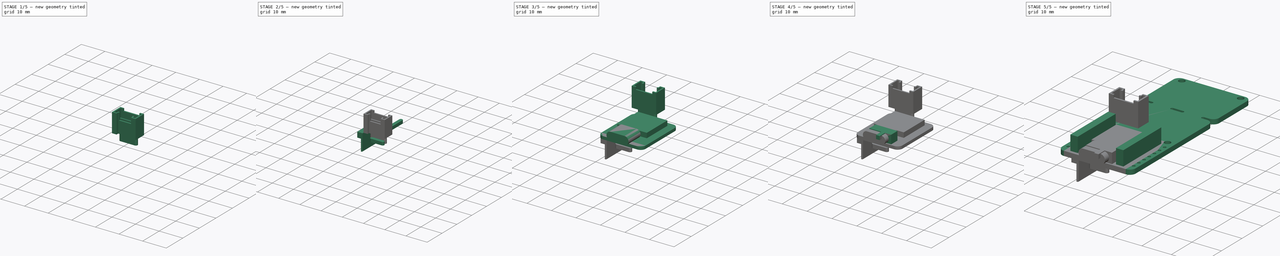
[diagram: build sequence overview — one tinted view per stage of 5, left to right]
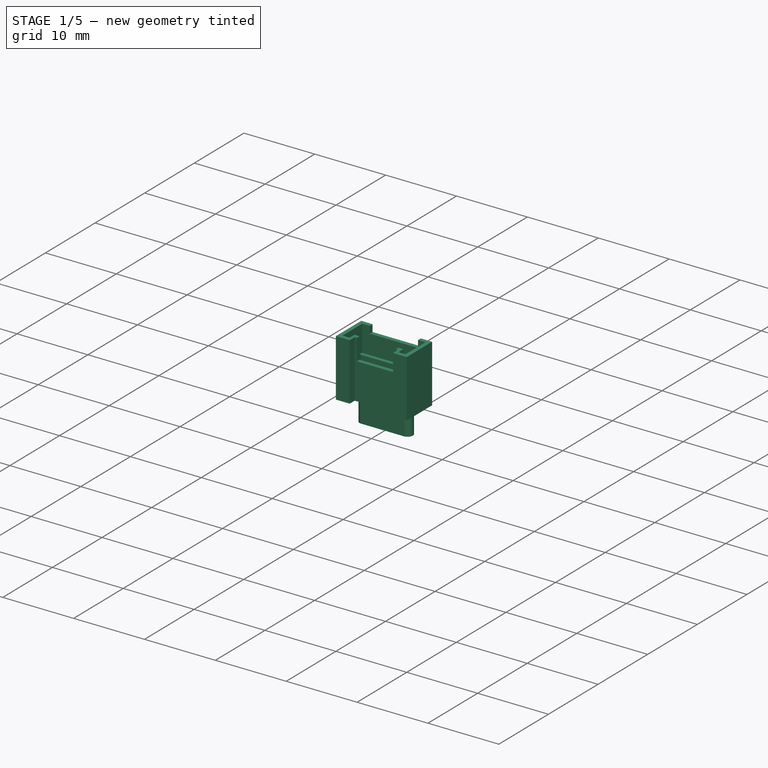
[diagram: stage 1 of 5 — iso view after this stage's code; geometry added in this stage tinted green]
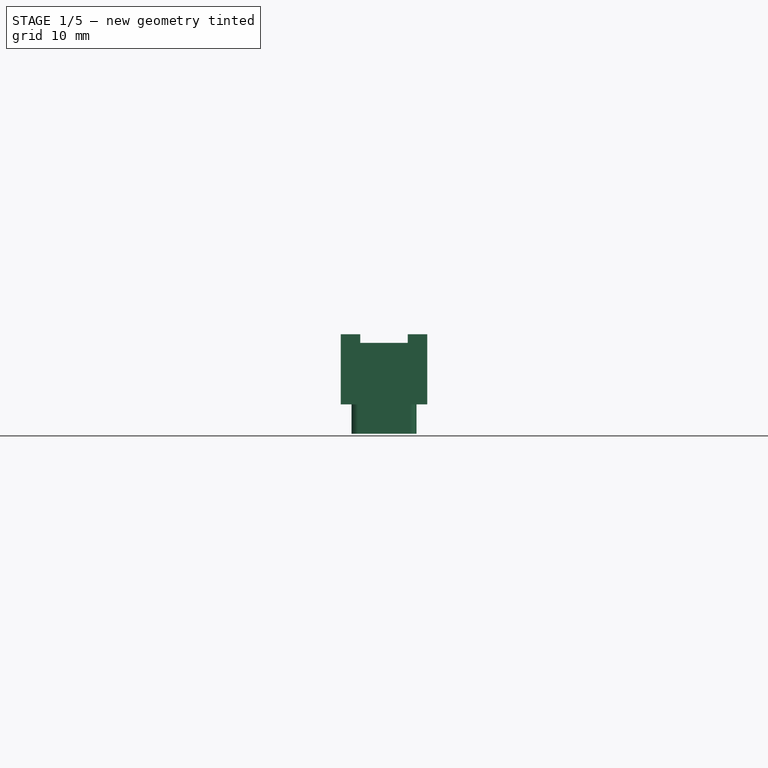
[diagram: stage 1 of 5 — front view after this stage's code; geometry added in this stage tinted green]
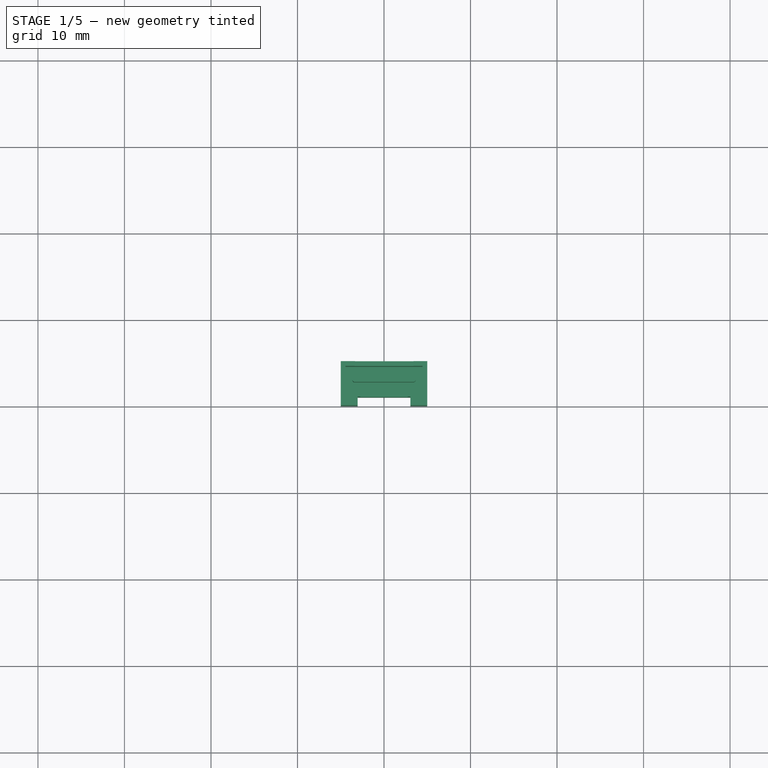
[diagram: stage 1 of 5 — top view after this stage's code; geometry added in this stage tinted green]
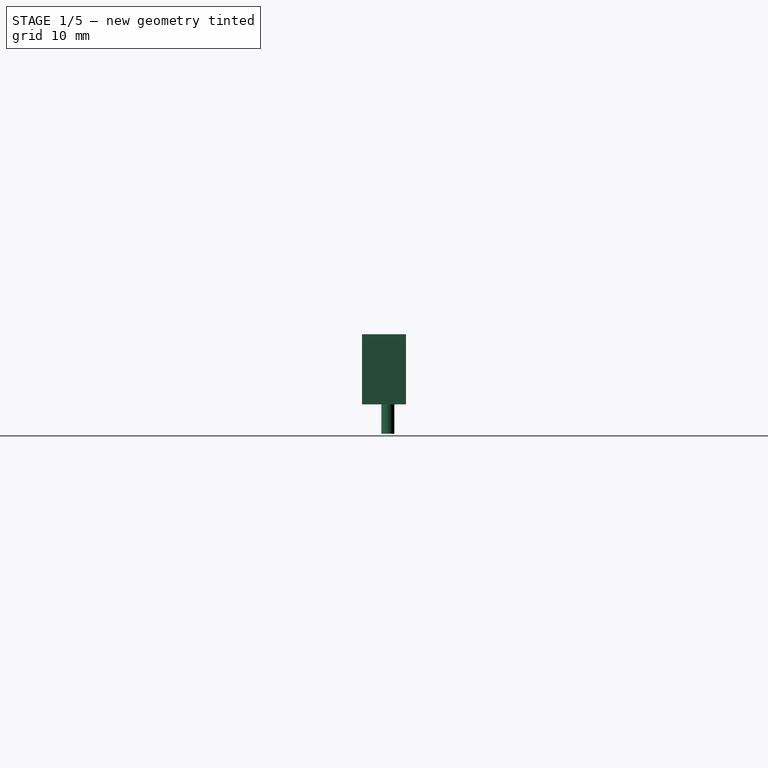
[diagram: stage 1 of 5 — right view after this stage's code; geometry added in this stage tinted green]
FCSTD DOCUMENT  (FreeCAD 0.19R24276 (Git))
Label: Grove_XiaoAndShield
License: All rights reserved
LicenseURL: http://en.wikipedia.org/wiki/All_rights_reserved
objects: PartDesign::Body×23, Sketcher::SketchObject×21, PartDesign::Pad×15, PartDesign::FeatureBase×11, PartDesign::Pocket×6, App::Part×2, PartDesign::Plane×1, PartDesign::ShapeBinder×1
note: 99 computed .brp shape members not serialized (recipe doc carries the construction recipe); baked Part::Feature solids carry a one-line shape summary decoded from their .brp

FEATURE [PartDesign::Body] Body004  label="PowerSwitch"
  Group = -> [Sketch006,Pad003,Sketch007,Pad004]
  Origin = -> Origin006
  Tip = -> Pad004
FEATURE [Sketcher::SketchObject] Sketch008
  FullyConstrained = true
  MapMode = 5
  Support = -> [XY_Plane007]
  sketch-geometry (8):
    g0: LineSegment StartX=-5 StartY=0 StartZ=0 EndX=-3.05 EndY=0 EndZ=0
    g1: LineSegment StartX=3.05 StartY=0 StartZ=0 EndX=5 EndY=0 EndZ=0
    g2: LineSegment StartX=-5 StartY=0 StartZ=0 EndX=-5 EndY=5.1 EndZ=0
    g3: LineSegment StartX=-5 StartY=5.1 StartZ=0 EndX=5 EndY=5.1 EndZ=0
    g4: LineSegment StartX=5 StartY=5.1 StartZ=0 EndX=5 EndY=0 EndZ=0
    g5: LineSegment StartX=3.05 StartY=0 StartZ=0 EndX=3.05 EndY=1 EndZ=0
    g6: LineSegment StartX=3.05 StartY=1 StartZ=0 EndX=-3.05 EndY=1 EndZ=0
    g7: LineSegment StartX=-3.05 StartY=1 StartZ=0 EndX=-3.05 EndY=0 EndZ=0
  constraints (23):
    c: PointOnObject(g0,g-1)
    c: PointOnObject(g1,g-1)
    c: PointOnObject(g0,g-1)
    c: Coincident(g2,g0)
    c: Vertical(g2)
    c: Coincident(g3,g2)
    c: Horizontal(g3)
    c: Coincident(g4,g3)
    c: Coincident(g4,g1)
    c: Vertical(g4)
    c: Coincident(g5,g1)
    c: Vertical(g5)
    c: Coincident(g6,g5)
    c: Horizontal(g6)
    c: Coincident(g7,g6)
    c: Coincident(g7,g0)
    c: Vertical(g7)
    c: Equal(g0,g1)
    c: Symmetric(g0,g1,g-1)
    c: Distance(g4) = 5.1
    c: Distance(g6) = 6.1
    c: Distance(g3) = 10
    c: Distance(g7) = 1
FEATURE [PartDesign::Pad] Pad005
  Direction = (1,1,1)
  Length = 8.1
  Length2 = 100
  Profile = -> Sketch008
  Type = 0
FEATURE [Sketcher::SketchObject] Sketch009
  FullyConstrained = true
  MapMode = 5
  Placement = pos=(0,0,8.1) rot=(0,0,1;0rad)
  Support = -> [Pad005]
  sketch-geometry (10):
    g0: LineSegment StartX=-4.45 StartY=0.55 StartZ=0 EndX=-3.45 EndY=0.55 EndZ=0
    g1: LineSegment StartX=-3.45 StartY=0.55 StartZ=0 EndX=-3.45 EndY=1.55 EndZ=0
    g2: LineSegment StartX=-3.45 StartY=1.55 StartZ=0 EndX=3.45 EndY=1.55 EndZ=0
    g3: LineSegment StartX=3.45 StartY=1.55 StartZ=0 EndX=3.45 EndY=0.55 EndZ=0
    g4: LineSegment StartX=3.45 StartY=0.55 StartZ=0 EndX=4.45 EndY=0.55 EndZ=0
    g5: LineSegment StartX=4.45 StartY=0.55 StartZ=0 EndX=4.45 EndY=4.55 EndZ=0
    g6: LineSegment StartX=4.45 StartY=4.55 StartZ=0 EndX=-4.45 EndY=4.55 EndZ=0
    g7: LineSegment StartX=-4.45 StartY=4.55 StartZ=0 EndX=-4.45 EndY=0.55 EndZ=0
    g8: LineSegment StartX=-3.45 StartY=0.55 StartZ=0 EndX=3.45 EndY=0.55 EndZ=0
    g9: LineSegment StartX=0 StartY=0 StartZ=0 EndX=0 EndY=0.55 EndZ=0
  constraints (28):
    c: Horizontal(g0)
    c: Coincident(g1,g0)
    c: Coincident(g2,g1)
    c: Horizontal(g2)
    c: Coincident(g3,g2)
    c: Vertical(g3)
    c: Coincident(g4,g3)
    c: Horizontal(g4)
    c: Coincident(g5,g4)
    c: Vertical(g5)
    c: Coincident(g6,g5)
    c: Horizontal(g6)
    c: Coincident(g7,g6)
    c: Coincident(g7,g0)
    c: Vertical(g7)
    c: Vertical(g1)
    c: Coincident(g8,g0)
    c: Coincident(g8,g3)
    c: Horizontal(g8)
    c: Equal(g0,g4)
    c: Coincident(g9,g-1)
    c: PointOnObject(g9,g-2)
    c: Symmetric(g0,g3,g9)
    c: Distance(g0) = 1
    c: Distance(g1) = 1
    c: Distance(g9) = 0.55
    c: Distance(g6) = 8.9
    c: DistanceY(g2,g5) = 3
FEATURE [PartDesign::Pocket] Pocket003
  BaseFeature = -> Pad005
  Length = 7
  Length2 = 100
  Profile = -> Sketch009
  Type = 0
FEATURE [Sketcher::SketchObject] Sketch010
  FullyConstrained = true
  MapMode = 5
  Placement = pos=(0,0,8.1) rot=(0,0,1;0rad)
  Support = -> [Pocket003]
  sketch-geometry (5):
    g0: LineSegment StartX=0 StartY=0 StartZ=0 EndX=0 EndY=3 EndZ=0
    g1: LineSegment StartX=-3.4 StartY=8 StartZ=0 EndX=3.4 EndY=8 EndZ=0
    g2: LineSegment StartX=3.4 StartY=8 StartZ=0 EndX=3.4 EndY=3 EndZ=0
    g3: LineSegment StartX=3.4 StartY=3 StartZ=0 EndX=-3.4 EndY=3 EndZ=0
    g4: LineSegment StartX=-3.4 StartY=3 StartZ=0 EndX=-3.4 EndY=8 EndZ=0
  constraints (14):
    c: Coincident(g0,g-1)
    c: PointOnObject(g0,g-2)
    c: Coincident(g1,g2)
    c: Coincident(g2,g3)
    c: Coincident(g3,g4)
    c: Coincident(g4,g1)
    c: Horizontal(g1)
    c: Horizontal(g3)
    c: Vertical(g2)
    c: Vertical(g4)
    c: Symmetric(g3,g2,g0)
    c: Distance(g0) = 3
    c: Distance(g2) = 5
    c: Distance(g1) = 6.8
FEATURE [PartDesign::Pocket] Pocket004
  BaseFeature = -> Pocket003
  Length = 1
  Length2 = 100
  Profile = -> Sketch010
  Type = 0
FEATURE [Sketcher::SketchObject] Sketch011
  FullyConstrained = true
  MapMode = 5
  Placement = pos=(0,0,8.1) rot=(0,0,1;0rad)
  Support = -> [Pocket004]
  sketch-geometry (4):
    g0: LineSegment StartX=-2.75 StartY=3 StartZ=0 EndX=2.75 EndY=3 EndZ=0
    g1: LineSegment StartX=2.75 StartY=3 StartZ=0 EndX=2.75 EndY=0 EndZ=0
    g2: LineSegment StartX=2.75 StartY=0 StartZ=0 EndX=-2.75 EndY=0 EndZ=0
    g3: LineSegment StartX=-2.75 StartY=0 StartZ=0 EndX=-2.75 EndY=3 EndZ=0
  constraints (11):
    c: Coincident(g0,g1)
    c: Coincident(g1,g2)
    c: Coincident(g2,g3)
    c: Coincident(g3,g0)
    c: Horizontal(g0)
    c: Horizontal(g2)
    c: Vertical(g1)
    c: Vertical(g3)
    c: Symmetric(g2,g1,g-1)
    c: Distance(g1) = 3
    c: Distance(g0) = 5.5
FEATURE [PartDesign::Pocket] Pocket005
  BaseFeature = -> Pocket004
  Length = 3
  Length2 = 100
  Profile = -> Sketch011
  Type = 0
FEATURE [Sketcher::SketchObject] Sketch012
  FullyConstrained = true
  MapMode = 5
  Placement = pos=(0,0,1.1) rot=(0,0,1;0rad)
  Support = -> [Pocket005]
  sketch-geometry (5):
    g0: ArcOfCircle CenterX=-3.4 CenterY=3 CenterZ=0 NormalX=0 NormalY=0 NormalZ=1 AngleXU=0 Radius=0.25 StartAngle=1.5708 EndAngle=4.71239
    g1: ArcOfCircle CenterX=3.4 CenterY=3 CenterZ=0 NormalX=0 NormalY=0 NormalZ=1 AngleXU=0 Radius=0.25 StartAngle=4.71239 EndAngle=7.85398
    g2: LineSegment StartX=-3.4 StartY=2.75 StartZ=0 EndX=3.4 EndY=2.75 EndZ=0
    g3: LineSegment StartX=-3.4 StartY=3.25 StartZ=0 EndX=3.4 EndY=3.25 EndZ=0
    g4: LineSegment StartX=0 StartY=0 StartZ=0 EndX=0 EndY=2.75 EndZ=0
  constraints (12):
    c: Tangent(g0,g3) = 1.5708
    c: Tangent(g0,g2) = -1.5708
    c: Tangent(g2,g1) = -1.5708
    c: Tangent(g3,g1) = 1.5708
    c: Horizontal(g2)
    c: Equal(g0,g1)
    c: Coincident(g4,g-1)
    c: PointOnObject(g4,g-2)
    c: Symmetric(g0,g1,g4)
    c: DistanceY(g-1,g1) = 3
    c: DistanceY(g1,g1) = 0.5
    c: DistanceX(g0,g1) = 6.8
FEATURE [PartDesign::Pad] Pad006
  BaseFeature = -> Pocket005
  Direction = (1,1,1)
  Length = 4
  Length2 = 100
  Profile = -> Sketch012
  Type = 0
FEATURE [PartDesign::Body] Body022  label="Solder_PSwitch_2"
  BaseFeature = -> Body021
  Group = -> [Clone010]
  Origin = -> Origin024
  Placement = pos=(0,3,0) rot=(0,0,1;0rad)
  Tip = -> Clone010
FEATURE [Sketcher::SketchObject] Sketch020
  FullyConstrained = true
  MapMode = 5
  Placement = pos=(0,0,0) rot=(1,0,0;3.14159rad)
  Support = -> [Pad006]
  sketch-geometry (5):
    g0: ArcOfCircle CenterX=-3 CenterY=-3 CenterZ=0 NormalX=0 NormalY=0 NormalZ=1 AngleXU=0 Radius=0.75 StartAngle=1.5708 EndAngle=4.71239
    g1: ArcOfCircle CenterX=3 CenterY=-3 CenterZ=0 NormalX=0 NormalY=0 NormalZ=1 AngleXU=0 Radius=0.75 StartAngle=4.71239 EndAngle=7.85398
    g2: LineSegment StartX=-3 StartY=-3.75 StartZ=0 EndX=3 EndY=-3.75 EndZ=0
    g3: LineSegment StartX=-3 StartY=-2.25 StartZ=0 EndX=3 EndY=-2.25 EndZ=0
    g4: LineSegment StartX=0 StartY=0 StartZ=0 EndX=0 EndY=-3 EndZ=0
  constraints (12):
    c: Tangent(g0,g3) = 1.5708
    c: Tangent(g0,g2) = -1.5708
    c: Tangent(g2,g1) = -1.5708
    c: Tangent(g3,g1) = 1.5708
    c: Horizontal(g2)
    c: Equal(g0,g1)
    c: DistanceX(g0,g1) = 6
    c: DistanceY(g1,g1) = 1.5
    c: Coincident(g4,g-1)
    c: PointOnObject(g4,g-2)
    c: Symmetric(g0,g1,g4)
    c: Distance(g4) = 3
FEATURE [PartDesign::Pad] Pad014
  BaseFeature = -> Pad006
  Direction = (1,1,1)
  Length = 3.4
  Length2 = 100
  Profile = -> Sketch020
  Type = 0
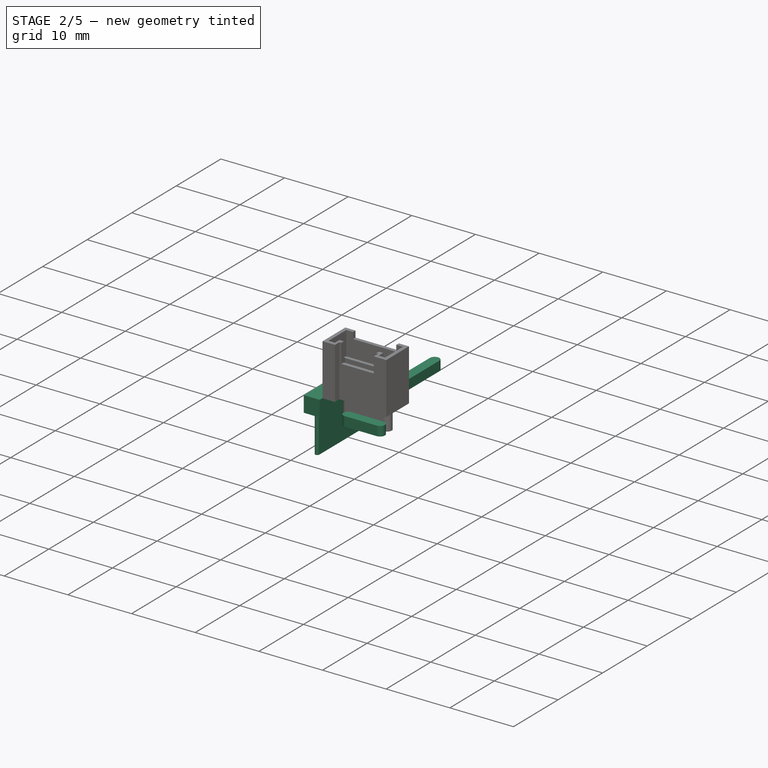
[diagram: stage 2 of 5 — iso view after this stage's code; geometry added in this stage tinted green]
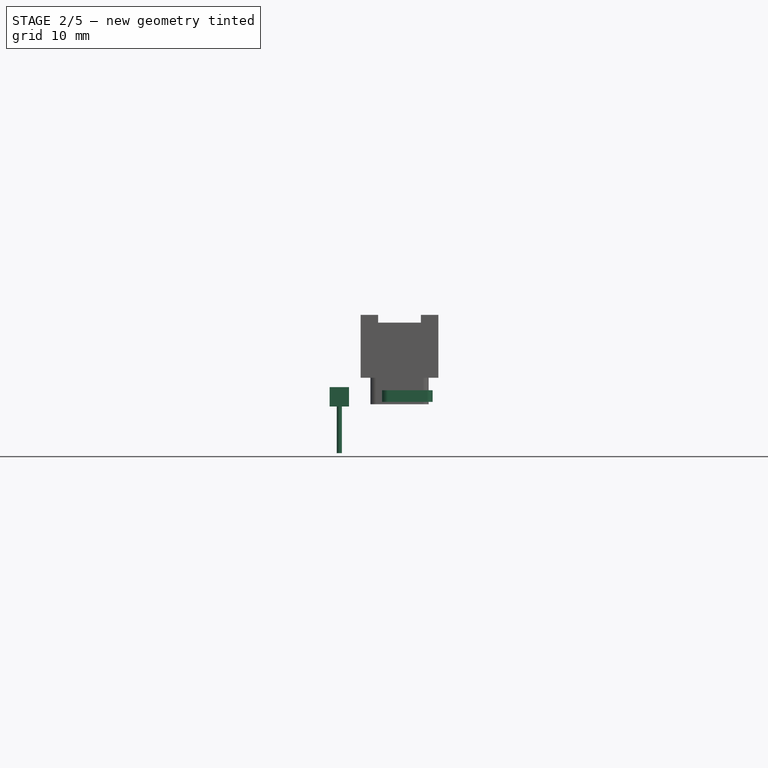
[diagram: stage 2 of 5 — front view after this stage's code; geometry added in this stage tinted green]
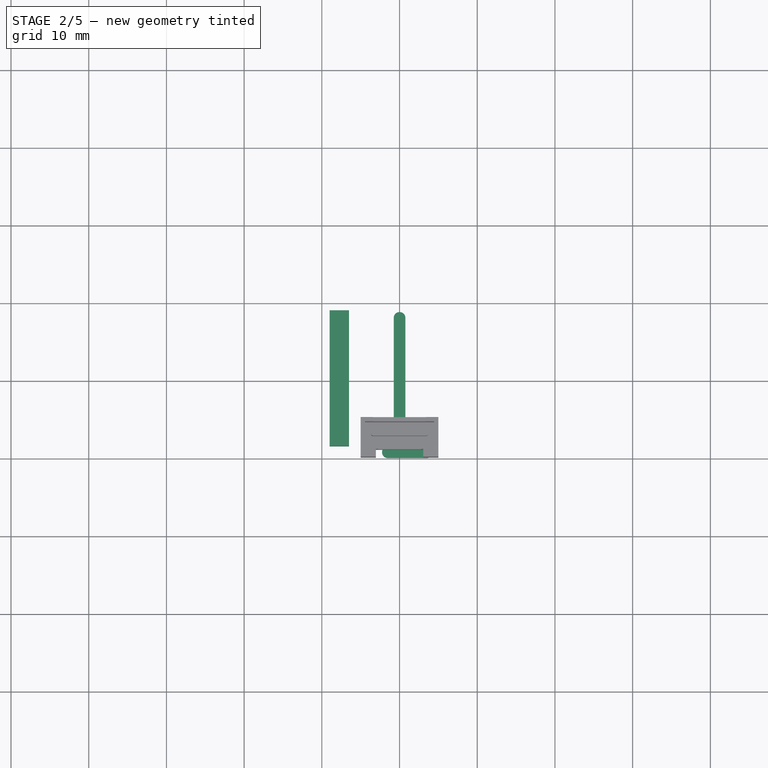
[diagram: stage 2 of 5 — top view after this stage's code; geometry added in this stage tinted green]
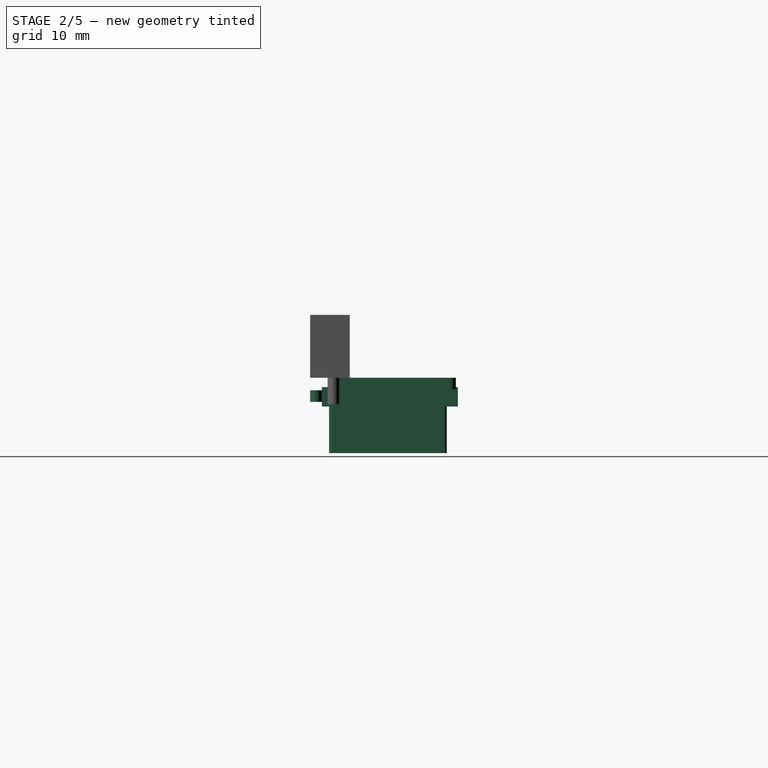
[diagram: stage 2 of 5 — right view after this stage's code; geometry added in this stage tinted green]
FEATURE [PartDesign::Body] Body014  label="CortexProcessor"
  Group = -> [Sketch015,Pad009]
  Origin = -> Origin016
  Tip = -> Pad009
FEATURE [PartDesign::Plane] DatumPlane
  AttachmentOffset = pos=(0,0,-1.2) rot=(0,0,1;0rad)
  Length = 60
  MapMode = 5
  Placement = pos=(0,0,-1.2) rot=(0,0,1;0rad)
  ResizeMode = 0
  Support = -> [XY_Plane017]
  Width = 60
FEATURE [Sketcher::SketchObject] Sketch016
  FullyConstrained = true
  MapMode = 5
  Placement = pos=(0,0,-1.2) rot=(0,0,1;0rad)
  Support = -> [DatumPlane]
  sketch-geometry (4):
    g0: LineSegment StartX=-9 StartY=19 StartZ=0 EndX=-6.5 EndY=19 EndZ=0
    g1: LineSegment StartX=-6.5 StartY=19 StartZ=0 EndX=-6.5 EndY=1.5 EndZ=0
    g2: LineSegment StartX=-6.5 StartY=1.5 StartZ=0 EndX=-9 EndY=1.5 EndZ=0
    g3: LineSegment StartX=-9 StartY=1.5 StartZ=0 EndX=-9 EndY=19 EndZ=0
  constraints (12):
    c: Coincident(g0,g1)
    c: Coincident(g1,g2)
    c: Coincident(g2,g3)
    c: Coincident(g3,g0)
    c: Horizontal(g0)
    c: Horizontal(g2)
    c: Vertical(g1)
    c: Vertical(g3)
    c: Distance(g3) = 17.5
    c: Distance(g2) = 2.5
    c: DistanceX(g2,g-1) = 9
    c: DistanceY(g-1,g2) = 1.5
FEATURE [PartDesign::Pad] Pad010
  Direction = (1,1,1)
  Length = 2.5
  Length2 = 100
  Placement = pos=(0,0,-1.2) rot=(0,0,1;0rad)
  Profile = -> Sketch016
  Reversed = true
  Type = 0
FEATURE [PartDesign::Body] Body016  label="PinBlock_R"
  BaseFeature = -> Body015
  Group = -> [Clone007]
  Origin = -> Origin018
  Placement = pos=(15.5,0,0) rot=(0,0,1;0rad)
  Tip = -> Clone007
FEATURE [PartDesign::ShapeBinder] CopyPad010
  Placement = pos=(0,0,-2.5) rot=(0,0,1;0rad)
  TraceSupport = false
FEATURE [Sketcher::SketchObject] Sketch017
  FullyConstrained = true
  MapMode = 5
  Placement = pos=(0,0,-3.7) rot=(1,0,0;3.14159rad)
  Support = -> [CopyPad010]
  sketch-geometry (4):
    g0: ArcOfCircle CenterX=-7.75 CenterY=-2.75 CenterZ=0 NormalX=0 NormalY=0 NormalZ=1 AngleXU=0 Radius=0.325 StartAngle=-6.22e-14 EndAngle=3.14159
    g1: ArcOfCircle CenterX=-7.75 CenterY=-17.25 CenterZ=0 NormalX=0 NormalY=0 NormalZ=1 AngleXU=0 Radius=0.325 StartAngle=3.14159 EndAngle=6.28319
    g2: LineSegment StartX=-8.075 StartY=-2.75 StartZ=0 EndX=-8.075 EndY=-17.25 EndZ=0
    g3: LineSegment StartX=-7.425 StartY=-2.75 StartZ=0 EndX=-7.425 EndY=-17.25 EndZ=0
  constraints (10):
    c: Tangent(g0,g3) = 1.5708
    c: Tangent(g0,g2) = -1.5708
    c: Tangent(g2,g1) = -1.5708
    c: Tangent(g3,g1) = 1.5708
    c: Vertical(g2)
    c: Equal(g0,g1)
    c: DistanceX(g1,g1) = 0.65
    c: Distance(g2) = 14.5
    c: DistanceX(g1,g-1) = 7.75
    c: DistanceY(g0,g-1) = 2.75
FEATURE [PartDesign::Pad] Pad011
  Direction = (1,1,1)
  Length = 6
  Length2 = 100
  Placement = pos=(0,0,-2.5) rot=(0,0,1;0rad)
  Profile = -> Sketch017
  Type = 0
FEATURE [PartDesign::Body] Body017  label="Pins_L"
  Group = -> [CopyPad010,Sketch017,Pad011]
  Origin = -> Origin019
  Tip = -> Pad011
FEATURE [PartDesign::FeatureBase] Clone008
  BaseFeature = -> Body017
FEATURE [PartDesign::Body] Body018  label="Pins_R"
  BaseFeature = -> Body017
  Group = -> [Clone008]
  Origin = -> Origin020
  Placement = pos=(15.5,0,0) rot=(0,0,1;0rad)
  Tip = -> Clone008
FEATURE [App::Part] Part  label="Seeeduino_Xiao"
  Group = -> [Body,Body013,Body014,Body015,Body016,Body017,Body018]
  Origin = -> Origin
  Placement = pos=(0,0,10) rot=(0,0,1;0rad)
FEATURE [Sketcher::SketchObject] Sketch018
  FullyConstrained = true
  MapMode = 5
  Support = -> [XY_Plane021]
  sketch-geometry (4):
    g0: ArcOfCircle CenterX=0 CenterY=18 CenterZ=0 NormalX=0 NormalY=0 NormalZ=1 AngleXU=0 Radius=0.75 StartAngle=-2.203e-13 EndAngle=3.14159
    g1: ArcOfCircle CenterX=3.25e-14 CenterY=3 CenterZ=0 NormalX=0 NormalY=0 NormalZ=1 AngleXU=0 Radius=0.75 StartAngle=3.14159 EndAngle=6.28319
    g2: LineSegment StartX=-0.75 StartY=18 StartZ=0 EndX=-0.75 EndY=3 EndZ=0
    g3: LineSegment StartX=0.75 StartY=18 StartZ=0 EndX=0.75 EndY=3 EndZ=0
  constraints (10):
    c: Tangent(g0,g3) = 1.5708
    c: Tangent(g0,g2) = -1.5708
    c: Tangent(g2,g1) = -1.5708
    c: Tangent(g3,g1) = 1.5708
    c: Vertical(g2)
    c: Equal(g0,g1)
    c: PointOnObject(g0,g-2)
    c: DistanceX(g1,g1) = 1.5
    c: DistanceY(g-1,g1) = 3
    c: DistanceY(g1,g0) = 15
FEATURE [PartDesign::Pad] Pad012
  Direction = (1,1,1)
  Length = 1.5
  Length2 = 100
  Profile = -> Sketch018
  Reversed = true
  Type = 0
FEATURE [PartDesign::Body] Body019  label="Solder_XiaoPinHeader_L"
  Group = -> [Sketch018,Pad012]
  Origin = -> Origin021
  Placement = pos=(-7.75,0,-1.6) rot=(0,0,1;0rad)
  Tip = -> Pad012
FEATURE [PartDesign::FeatureBase] Clone009
  BaseFeature = -> Body019
FEATURE [PartDesign::Body] Body020  label="Solder_XiaoPinHeader_R"
  BaseFeature = -> Body019
  Group = -> [Clone009]
  Origin = -> Origin022
  Placement = pos=(7.75,0,-1.6) rot=(0,0,1;0rad)
  Tip = -> Clone009
FEATURE [Sketcher::SketchObject] Sketch019
  FullyConstrained = true
  MapMode = 5
  Support = -> [XY_Plane023]
  sketch-geometry (4):
    g0: ArcOfCircle CenterX=-2.5 CenterY=0.75 CenterZ=0 NormalX=0 NormalY=0 NormalZ=1 AngleXU=0 Radius=0.75 StartAngle=1.5708 EndAngle=4.71239
    g1: ArcOfCircle CenterX=2.5 CenterY=0.75 CenterZ=0 NormalX=0 NormalY=0 NormalZ=1 AngleXU=0 Radius=0.75 StartAngle=4.71239 EndAngle=7.85398
    g2: LineSegment StartX=-2.5 StartY=4.1064e-12 StartZ=0 EndX=2.5 EndY=4.1064e-12 EndZ=0
    g3: LineSegment StartX=-2.5 StartY=1.5 StartZ=0 EndX=2.5 EndY=1.5 EndZ=0
  constraints (9):
    c: Tangent(g0,g3) = 1.5708
    c: Tangent(g0,g2) = -1.5708
    c: Tangent(g2,g1) = -1.5708
    c: Tangent(g3,g1) = 1.5708
    c: Horizontal(g2)
    c: Equal(g0,g1)
    c: DistanceX(g0,g1) = 5
    c: DistanceY(g1,g1) = 1.5
    c: Symmetric(g0,g1,g-1)
FEATURE [PartDesign::Pad] Pad013
  Direction = (1,1,1)
  Length = 1.5
  Length2 = 100
  Profile = -> Sketch019
  Reversed = true
  Type = 0
FEATURE [PartDesign::Body] Body021  label="Solder_PSwitch_1"
  Group = -> [Sketch019,Pad013]
  Origin = -> Origin023
  Placement = pos=(1,0,-1.6) rot=(0,0,1;0rad)
  Tip = -> Pad013
FEATURE [PartDesign::FeatureBase] Clone010
  BaseFeature = -> Body021
  Placement = pos=(1,0,-1.6) rot=(0,0,1;0rad)
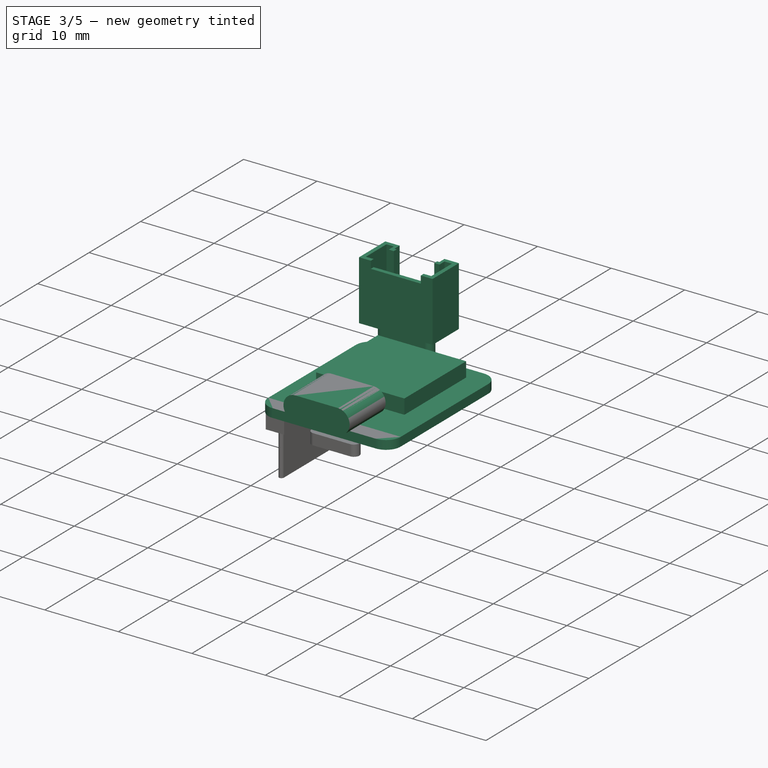
[diagram: stage 3 of 5 — iso view after this stage's code; geometry added in this stage tinted green]
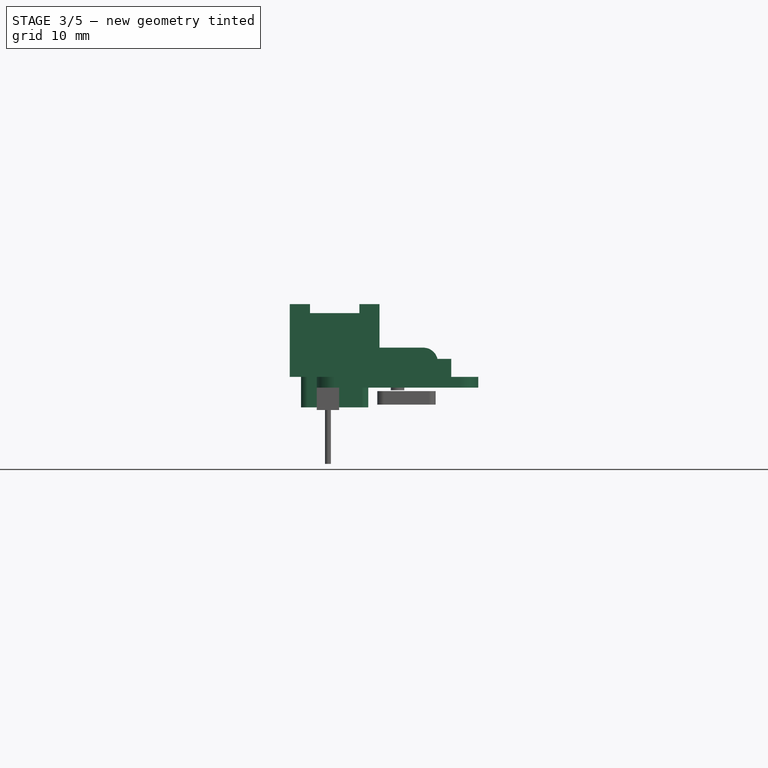
[diagram: stage 3 of 5 — front view after this stage's code; geometry added in this stage tinted green]
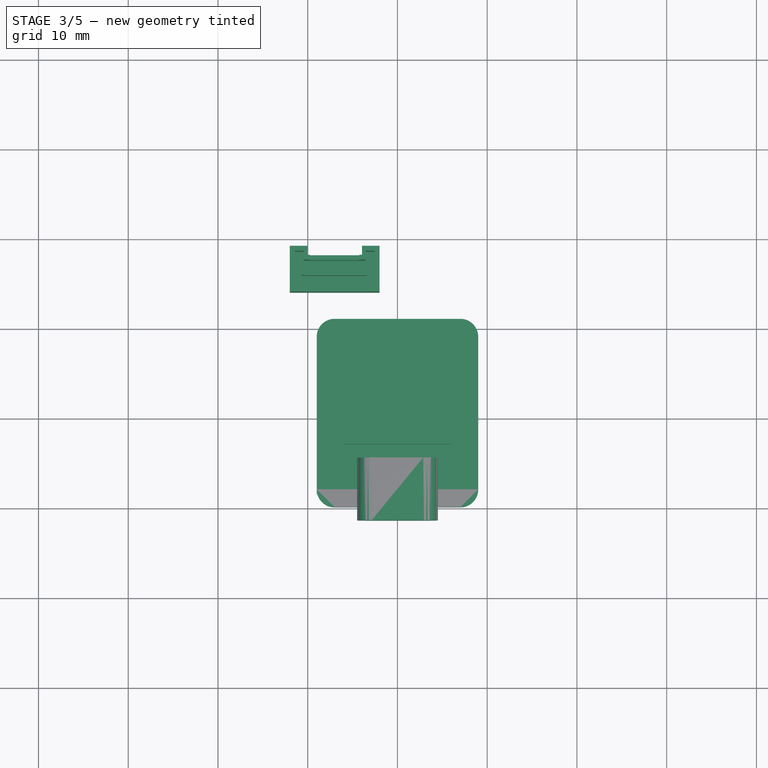
[diagram: stage 3 of 5 — top view after this stage's code; geometry added in this stage tinted green]
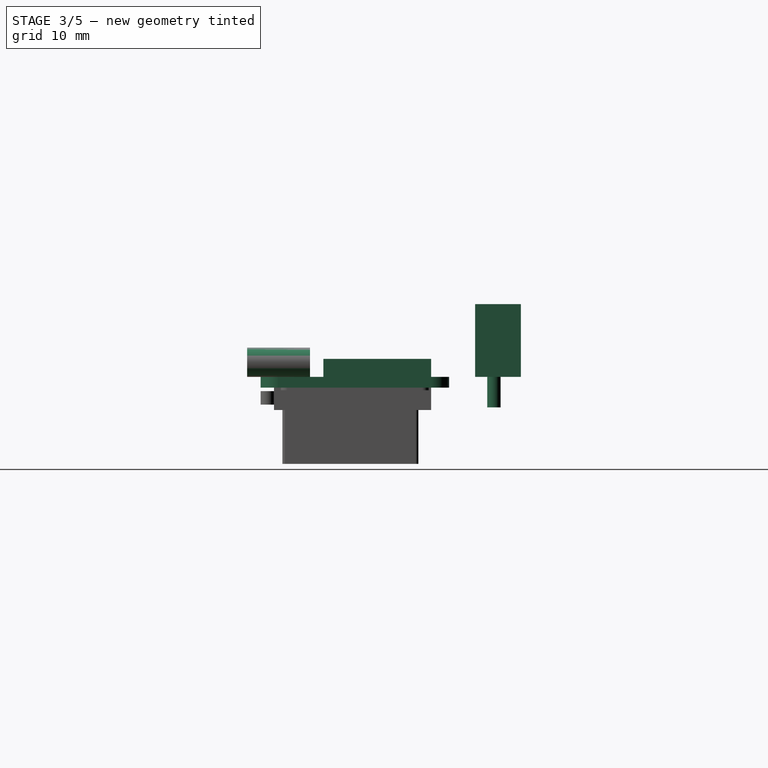
[diagram: stage 3 of 5 — right view after this stage's code; geometry added in this stage tinted green]
FEATURE [Sketcher::SketchObject] Sketch013
  FullyConstrained = true
  MapMode = 5
  Support = -> [XY_Plane001]
  sketch-geometry (12):
    g0: LineSegment StartX=-7 StartY=0 StartZ=0 EndX=7 EndY=0 EndZ=0
    g1: LineSegment StartX=9 StartY=2 StartZ=0 EndX=9 EndY=19 EndZ=0
    g2: LineSegment StartX=7 StartY=21 StartZ=0 EndX=-7 EndY=21 EndZ=0
    g3: LineSegment StartX=-9 StartY=19 StartZ=0 EndX=-9 EndY=2 EndZ=0
    g4: ArcOfCircle CenterX=-7 CenterY=19 CenterZ=0 NormalX=0 NormalY=0 NormalZ=1 AngleXU=0 Radius=2 StartAngle=1.5708 EndAngle=3.14159
    g5: ArcOfCircle CenterX=7 CenterY=19 CenterZ=0 NormalX=0 NormalY=0 NormalZ=1 AngleXU=0 Radius=2 StartAngle=-9e-16 EndAngle=1.5708
    g6: ArcOfCircle CenterX=7 CenterY=2 CenterZ=0 NormalX=0 NormalY=0 NormalZ=1 AngleXU=0 Radius=2 StartAngle=4.71239 EndAngle=6.28319
    g7: ArcOfCircle CenterX=-7 CenterY=2 CenterZ=0 NormalX=0 NormalY=0 NormalZ=1 AngleXU=0 Radius=2 StartAngle=3.14159 EndAngle=4.71239
    g8: LineSegment StartX=-7 StartY=19 StartZ=0 EndX=7 EndY=19 EndZ=0
    g9: LineSegment StartX=7 StartY=19 StartZ=0 EndX=7 EndY=2 EndZ=0
    g10: LineSegment StartX=7 StartY=2 StartZ=0 EndX=-7 EndY=2 EndZ=0
    g11: LineSegment StartX=-7 StartY=2 StartZ=0 EndX=-7 EndY=19 EndZ=0
  constraints (27):
    c: Horizontal(g0)
    c: Horizontal(g2)
    c: Vertical(g1)
    c: Vertical(g3)
    c: Tangent(g2,g4) = -1.5708
    c: Tangent(g3,g4) = -1.5708
    c: Tangent(g2,g5) = -1.5708
    c: Tangent(g1,g5) = -1.5708
    c: Tangent(g1,g6) = -1.5708
    c: Tangent(g0,g6) = -1.5708
    c: Tangent(g0,g7) = -1.5708
    c: Tangent(g3,g7) = -1.5708
    c: Coincident(g8,g4)
    c: Coincident(g8,g5)
    c: Horizontal(g8)
    c: Coincident(g9,g5)
    c: Coincident(g9,g6)
    c: Coincident(g10,g6)
    c: Coincident(g10,g7)
    c: Coincident(g11,g7)
    c: Coincident(g11,g4)
    c: Vertical(g11)
    c: Vertical(g9)
    c: Radius(g6) = 2
    c: DistanceX(g3,g1) = 18
    c: DistanceY(g0,g2) = 21
    c: Symmetric(g0,g0,g-1)
FEATURE [PartDesign::Pad] Pad007
  Direction = (1,1,1)
  Length = 1.2
  Length2 = 100
  Profile = -> Sketch013
  Reversed = true
  Type = 0
FEATURE [PartDesign::Body] Body  label="MainBoard"
  Group = -> [Sketch013,Pad007]
  Origin = -> Origin001
  Tip = -> Pad007
FEATURE [Sketcher::SketchObject] Sketch014
  FullyConstrained = true
  MapMode = 5
  Placement = pos=(0,0,0) rot=(1,0,0;1.5708rad)
  Support = -> [XZ_Plane015]
  sketch-geometry (6):
    g0: ArcOfCircle CenterX=-2.875 CenterY=1.625 CenterZ=0 NormalX=0 NormalY=0 NormalZ=1 AngleXU=0 Radius=1.625 StartAngle=1.5708 EndAngle=4.71239
    g1: ArcOfCircle CenterX=2.875 CenterY=1.625 CenterZ=0 NormalX=0 NormalY=0 NormalZ=1 AngleXU=0 Radius=1.625 StartAngle=4.71239 EndAngle=7.85398
    g2: LineSegment StartX=-2.875 StartY=0 StartZ=0 EndX=2.875 EndY=0 EndZ=0
    g3: LineSegment StartX=-2.875 StartY=3.25 StartZ=0 EndX=2.875 EndY=3.25 EndZ=0
    g4: LineSegment StartX=4.5 StartY=1.625 StartZ=0 EndX=4.5 EndY=0 EndZ=0
    g5: LineSegment StartX=-4.5 StartY=1.625 StartZ=0 EndX=-4.5 EndY=0 EndZ=0
  constraints (17):
    c: Tangent(g0,g3) = 1.5708
    c: Tangent(g0,g2) = -1.5708
    c: Tangent(g2,g1) = -1.5708
    c: Tangent(g3,g1) = 1.5708
    c: Horizontal(g2)
    c: Equal(g0,g1)
    c: Symmetric(g0,g1,g-1)
    c: DistanceY(g1,g1) = 3.25
    c: PointOnObject(g4,g1)
    c: PointOnObject(g4,g-1)
    c: PointOnObject(g5,g0)
    c: PointOnObject(g5,g-1)
    c: Tangent(g5,g0)
    c: Tangent(g4,g1)
    c: Vertical(g5)
    c: Vertical(g4)
    c: DistanceX(g5,g4) = 9
FEATURE [PartDesign::Pad] Pad008
  Direction = (1,1,1)
  Length = 1.5
  Length2 = 5.5
  Placement = pos=(0,0,0) rot=(1,0,0;1.5708rad)
  Profile = -> Sketch014
  Type = 4
FEATURE [PartDesign::Body] Body013  label="USBCPort"
  Group = -> [Sketch014,Pad008]
  Origin = -> Origin015
  Tip = -> Pad008
FEATURE [Sketcher::SketchObject] Sketch015
  FullyConstrained = true
  MapMode = 5
  Support = -> [XY_Plane016]
  sketch-geometry (5):
    g0: LineSegment StartX=-6 StartY=19 StartZ=0 EndX=6 EndY=19 EndZ=0
    g1: LineSegment StartX=6 StartY=19 StartZ=0 EndX=6 EndY=7 EndZ=0
    g2: LineSegment StartX=6 StartY=7 StartZ=0 EndX=-6 EndY=7 EndZ=0
    g3: LineSegment StartX=-6 StartY=7 StartZ=0 EndX=-6 EndY=19 EndZ=0
    g4: LineSegment StartX=0 StartY=0 StartZ=0 EndX=0 EndY=7 EndZ=0
  constraints (14):
    c: Coincident(g0,g1)
    c: Coincident(g1,g2)
    c: Coincident(g2,g3)
    c: Coincident(g3,g0)
    c: Horizontal(g0)
    c: Horizontal(g2)
    c: Vertical(g1)
    c: Vertical(g3)
    c: Coincident(g4,g-1)
    c: PointOnObject(g4,g-2)
    c: Symmetric(g2,g1,g4)
    c: Equal(g0,g1)
    c: Distance(g0) = 12
    c: Distance(g4) = 7
FEATURE [PartDesign::Pad] Pad009
  Direction = (1,1,1)
  Length = 2
  Length2 = 100
  Profile = -> Sketch015
  Type = 0
FEATURE [PartDesign::Body] Body015  label="PinBlock_L"
  Group = -> [DatumPlane,Sketch016,Pad010]
  Origin = -> Origin017
  Tip = -> Pad010
FEATURE [PartDesign::FeatureBase] Clone007
  BaseFeature = -> Body015
FEATURE [PartDesign::Body] Body010  label="GroveHeader6"
  BaseFeature = -> Body005
  Group = -> [Clone004]
  Origin = -> Origin012
  Placement = pos=(14,18,0) rot=(0,0,1;0rad)
  Tip = -> Clone004
FEATURE [PartDesign::FeatureBase] Clone005
  BaseFeature = -> Body005
  Placement = pos=(-7,29,0) rot=(0,0,1;3.14159rad)
FEATURE [PartDesign::Body] Body011  label="GroveHeader7"
  BaseFeature = -> Body005
  Group = -> [Clone005]
  Origin = -> Origin013
  Placement = pos=(0,26,0) rot=(0,0,1;0rad)
  Tip = -> Clone005
FEATURE [PartDesign::FeatureBase] Clone006
  BaseFeature = -> Body005
  Placement = pos=(-7,29,0) rot=(0,0,1;3.14159rad)
FEATURE [PartDesign::Body] Body012  label="GroveHeader8"
  BaseFeature = -> Body005
  Group = -> [Clone006]
  Origin = -> Origin014
  Placement = pos=(14,26,0) rot=(0,0,1;0rad)
  Tip = -> Clone006
FEATURE [App::Part] Part001  label="Seeeduino_Xiao_GroveShield"
  Group = -> [Body001,Body002,Body003,Body004,Body005,Body006,Body007,Body008,Body009,Body010,Body011,Body012,Body019,Body020,Body021,Body022]
  Origin = -> Origin002
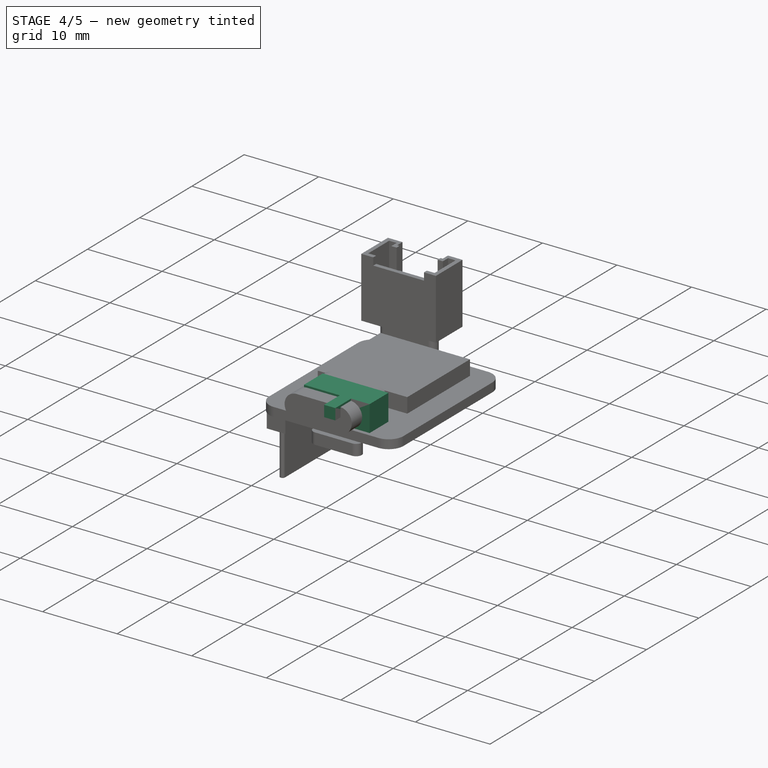
[diagram: stage 4 of 5 — iso view after this stage's code; geometry added in this stage tinted green]
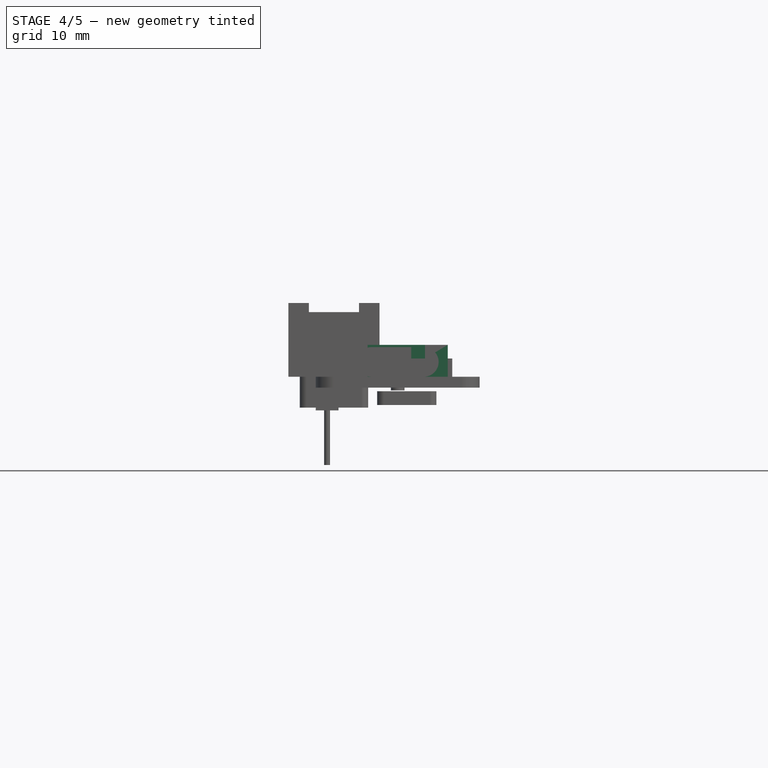
[diagram: stage 4 of 5 — front view after this stage's code; geometry added in this stage tinted green]
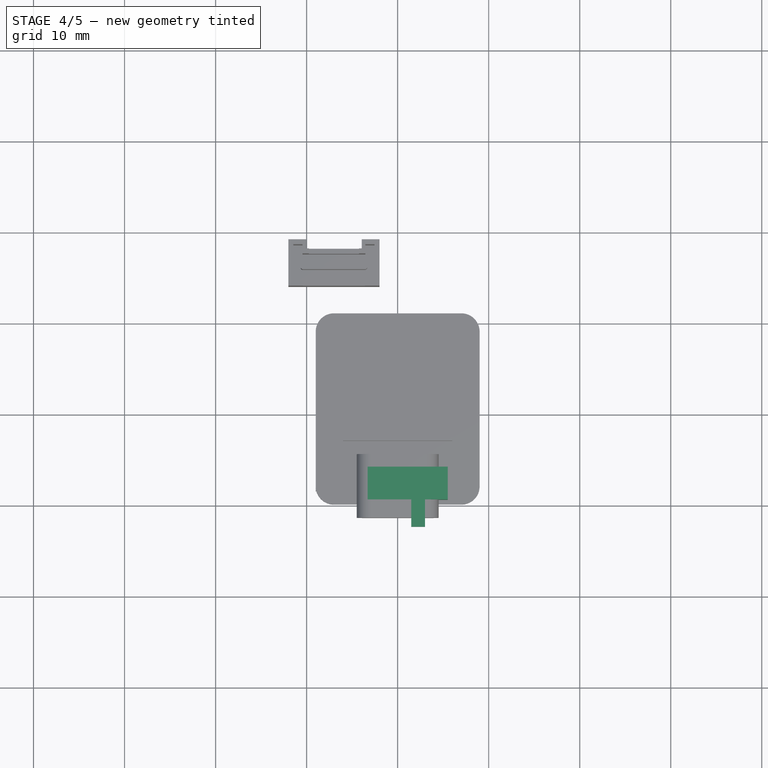
[diagram: stage 4 of 5 — top view after this stage's code; geometry added in this stage tinted green]
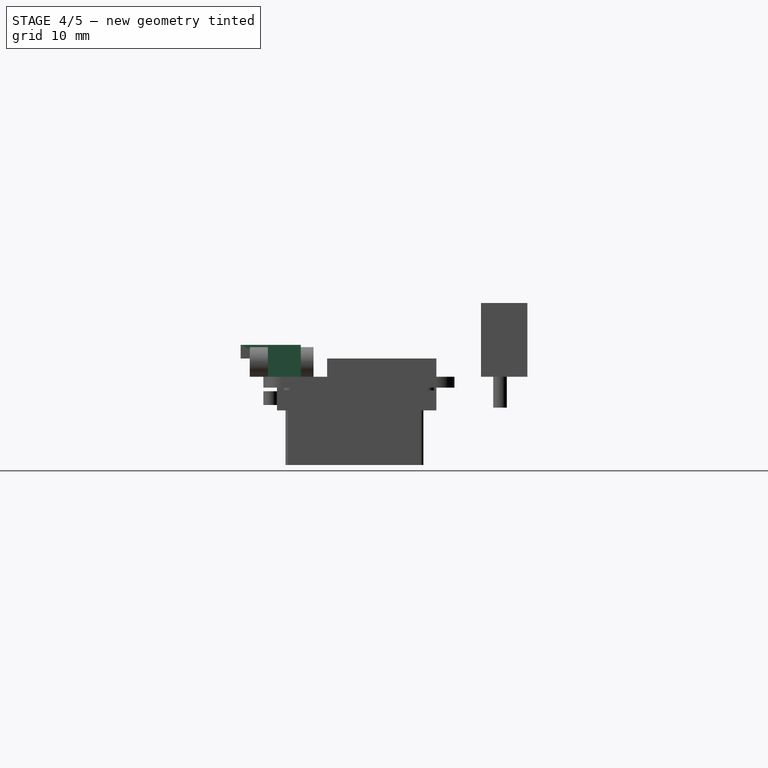
[diagram: stage 4 of 5 — right view after this stage's code; geometry added in this stage tinted green]
FEATURE [PartDesign::Body] Body002  label="XiaoPinMount_R"
  Group = -> [Sketch005,Pad002]
  Origin = -> Origin004
  Tip = -> Pad002
FEATURE [Sketcher::SketchObject] Sketch006
  FullyConstrained = true
  MapMode = 5
  Support = -> [XY_Plane006]
  sketch-geometry (4):
    g0: LineSegment StartX=-3.3 StartY=4.1 StartZ=0 EndX=5.5 EndY=4.1 EndZ=0
    g1: LineSegment StartX=5.5 StartY=4.1 StartZ=0 EndX=5.5 EndY=0.5 EndZ=0
    g2: LineSegment StartX=5.5 StartY=0.5 StartZ=0 EndX=-3.3 EndY=0.5 EndZ=0
    g3: LineSegment StartX=-3.3 StartY=0.5 StartZ=0 EndX=-3.3 EndY=4.1 EndZ=0
  constraints (12):
    c: Coincident(g0,g1)
    c: Coincident(g1,g2)
    c: Coincident(g2,g3)
    c: Coincident(g3,g0)
    c: Horizontal(g0)
    c: Horizontal(g2)
    c: Vertical(g1)
    c: Vertical(g3)
    c: Distance(g0) = 8.8
    c: Distance(g1) = 3.6
    c: DistanceX(g-1,g1) = 5.5
    c: DistanceY(g-1,g1) = 0.5
FEATURE [PartDesign::Pad] Pad003
  Direction = (1,1,1)
  Length = 3.5
  Length2 = 100
  Profile = -> Sketch006
  Type = 0
FEATURE [Sketcher::SketchObject] Sketch007
  FullyConstrained = true
  MapMode = 5
  Placement = pos=(0,0.5,0) rot=(1,0,0;1.5708rad)
  Support = -> [Pad003]
  sketch-geometry (4):
    g0: LineSegment StartX=1.5 StartY=3.5 StartZ=0 EndX=3 EndY=3.5 EndZ=0
    g1: LineSegment StartX=3 StartY=3.5 StartZ=0 EndX=3 EndY=2 EndZ=0
    g2: LineSegment StartX=3 StartY=2 StartZ=0 EndX=1.5 EndY=2 EndZ=0
    g3: LineSegment StartX=1.5 StartY=2 StartZ=0 EndX=1.5 EndY=3.5 EndZ=0
  constraints (12):
    c: Coincident(g0,g1)
    c: Coincident(g1,g2)
    c: Coincident(g2,g3)
    c: Coincident(g3,g0)
    c: Horizontal(g0)
    c: Horizontal(g2)
    c: Vertical(g1)
    c: Vertical(g3)
    c: Equal(g0,g1)
    c: Distance(g0) = 1.5
    c: DistanceY(g-1,g2) = 2
    c: DistanceX(g-1,g2) = 1.5
FEATURE [PartDesign::Pad] Pad004
  BaseFeature = -> Pad003
  Direction = (1,1,1)
  Length = 3
  Length2 = 100
  Profile = -> Sketch007
  Type = 0
FEATURE [PartDesign::Body] Body005  label="GroveHeader1"
  Group = -> [Sketch008,Pad005,Sketch009,Pocket003,Sketch010,Pocket004,Sketch011,Pocket005,Sketch012,Pad006,Sketch020,Pad014]
  Origin = -> Origin007
  Placement = pos=(-7,29,0) rot=(0,0,1;3.14159rad)
  Tip = -> Pad014
FEATURE [PartDesign::FeatureBase] Clone
  BaseFeature = -> Body005
  Placement = pos=(-7,29,0) rot=(0,0,1;3.14159rad)
FEATURE [PartDesign::Body] Body006  label="GroveHeader2"
  BaseFeature = -> Body005
  Group = -> [Clone]
  Origin = -> Origin008
  Placement = pos=(0,8,0) rot=(0,0,1;0rad)
  Tip = -> Clone
FEATURE [PartDesign::FeatureBase] Clone001
  BaseFeature = -> Body005
  Placement = pos=(-7,29,0) rot=(0,0,1;3.14159rad)
FEATURE [PartDesign::Body] Body007  label="GroveHeader3"
  BaseFeature = -> Body005
  Group = -> [Clone001]
  Origin = -> Origin009
  Placement = pos=(14,0,0) rot=(0,0,1;0rad)
  Tip = -> Clone001
FEATURE [PartDesign::FeatureBase] Clone002
  BaseFeature = -> Body005
  Placement = pos=(-7,29,0) rot=(0,0,1;3.14159rad)
FEATURE [PartDesign::Body] Body008  label="GroveHeader4"
  BaseFeature = -> Body005
  Group = -> [Clone002]
  Origin = -> Origin010
  Placement = pos=(14,8,0) rot=(0,0,1;0rad)
  Tip = -> Clone002
FEATURE [PartDesign::FeatureBase] Clone003
  BaseFeature = -> Body005
  Placement = pos=(-7,29,0) rot=(0,0,1;3.14159rad)
FEATURE [PartDesign::Body] Body009  label="GroveHeader5"
  BaseFeature = -> Body005
  Group = -> [Clone003]
  Origin = -> Origin011
  Placement = pos=(0,18,0) rot=(0,0,1;0rad)
  Tip = -> Clone003
FEATURE [PartDesign::FeatureBase] Clone004
  BaseFeature = -> Body005
  Placement = pos=(-7,29,0) rot=(0,0,1;3.14159rad)
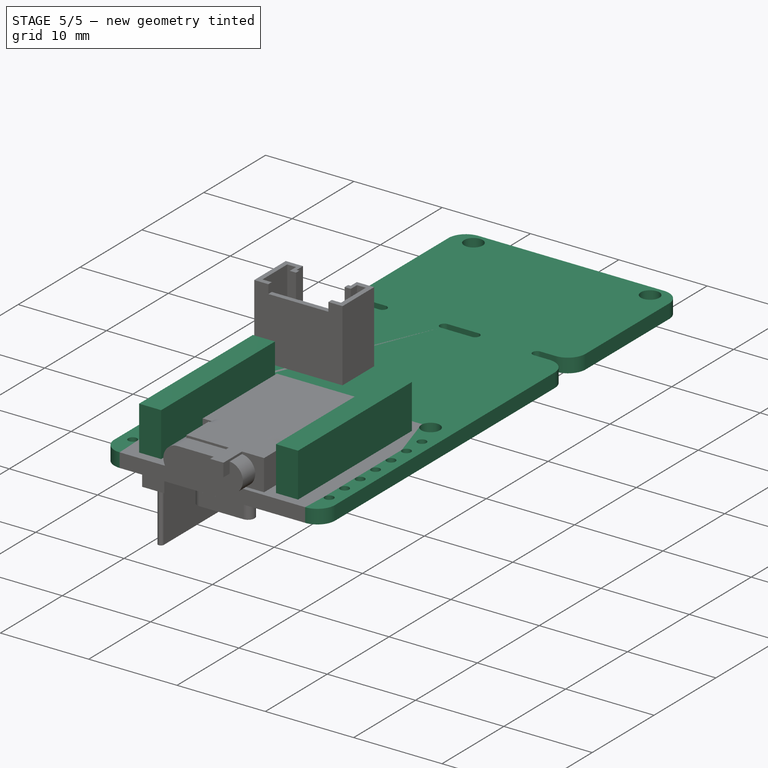
[diagram: stage 5 of 5 — iso view after this stage's code; geometry added in this stage tinted green]
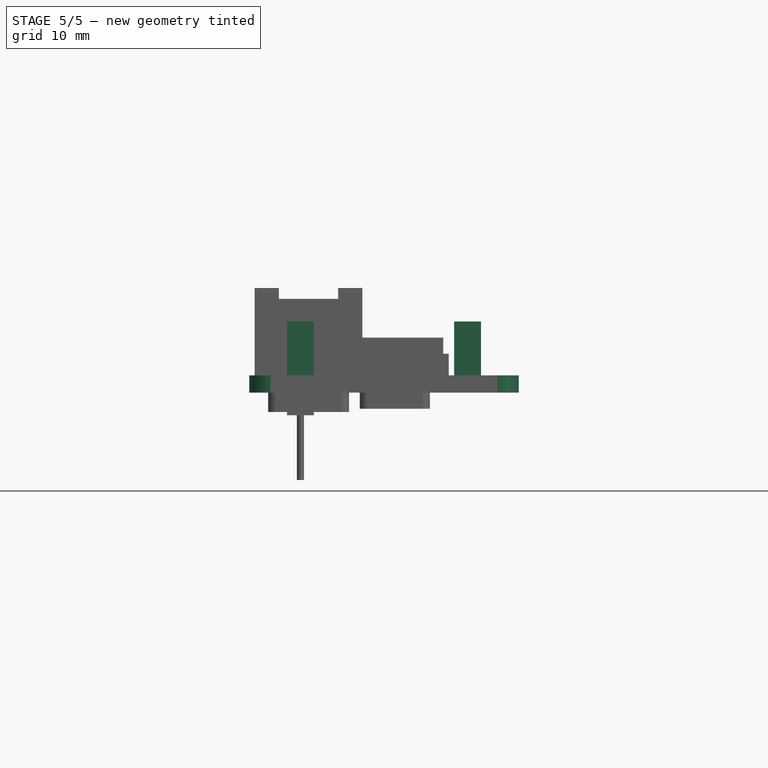
[diagram: stage 5 of 5 — front view after this stage's code; geometry added in this stage tinted green]
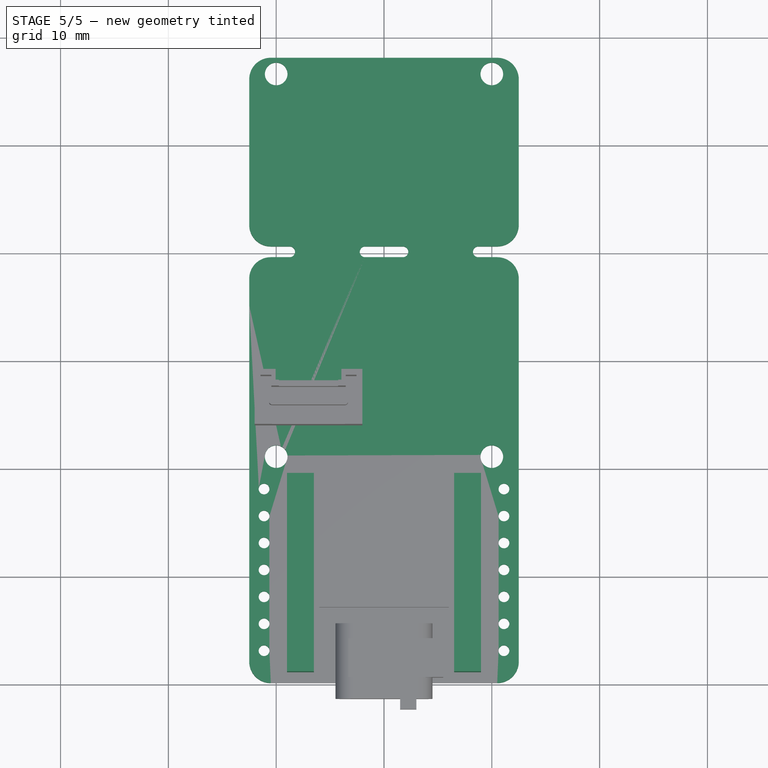
[diagram: stage 5 of 5 — top view after this stage's code; geometry added in this stage tinted green]
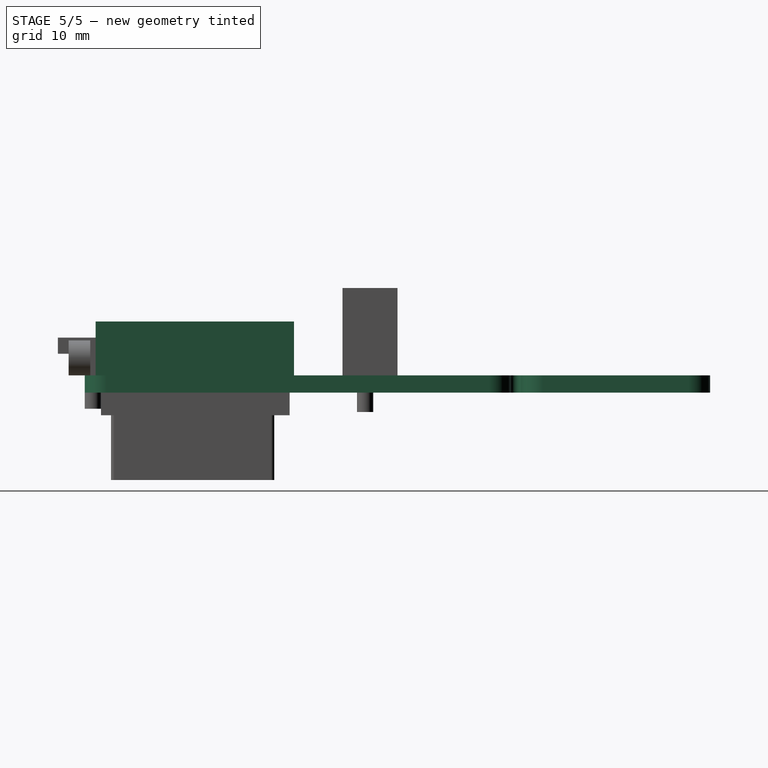
[diagram: stage 5 of 5 — right view after this stage's code; geometry added in this stage tinted green]
FEATURE [Sketcher::SketchObject] Sketch
  FullyConstrained = true
  MapMode = 5
  Support = -> [XY_Plane002]
  sketch-geometry (12):
    g0: LineSegment StartX=-10.5 StartY=0 StartZ=0 EndX=10.5 EndY=0 EndZ=0
    g1: LineSegment StartX=12.5 StartY=2 StartZ=0 EndX=12.5 EndY=56 EndZ=0
    g2: LineSegment StartX=10.5 StartY=58 StartZ=0 EndX=-10.5 EndY=58 EndZ=0
    g3: LineSegment StartX=-12.5 StartY=56 StartZ=0 EndX=-12.5 EndY=2 EndZ=0
    g4: ArcOfCircle CenterX=-10.5 CenterY=2 CenterZ=0 NormalX=0 NormalY=0 NormalZ=1 AngleXU=0 Radius=2 StartAngle=3.14159 EndAngle=4.71239
    g5: ArcOfCircle CenterX=10.5 CenterY=2 CenterZ=0 NormalX=0 NormalY=0 NormalZ=1 AngleXU=0 Radius=2 StartAngle=4.71239 EndAngle=6.28319
    g6: ArcOfCircle CenterX=10.5 CenterY=56 CenterZ=0 NormalX=0 NormalY=0 NormalZ=1 AngleXU=0 Radius=2 StartAngle=-9e-16 EndAngle=1.5708
    g7: ArcOfCircle CenterX=-10.5 CenterY=56 CenterZ=0 NormalX=0 NormalY=0 NormalZ=1 AngleXU=0 Radius=2 StartAngle=1.5708 EndAngle=3.14159
    g8: LineSegment StartX=-10.5 StartY=56 StartZ=0 EndX=10.5 EndY=56 EndZ=0
    g9: LineSegment StartX=10.5 StartY=56 StartZ=0 EndX=10.5 EndY=2 EndZ=0
    g10: LineSegment StartX=10.5 StartY=2 StartZ=0 EndX=-10.5 EndY=2 EndZ=0
    g11: LineSegment StartX=-10.5 StartY=2 StartZ=0 EndX=-10.5 EndY=56 EndZ=0
  constraints (27):
    c: Horizontal(g0)
    c: Horizontal(g2)
    c: Vertical(g1)
    c: Vertical(g3)
    c: Tangent(g3,g4) = -1.5708
    c: Tangent(g0,g4) = -1.5708
    c: Tangent(g0,g5) = -1.5708
    c: Tangent(g1,g5) = -1.5708
    c: Tangent(g2,g6) = -1.5708
    c: Tangent(g1,g6) = -1.5708
    c: Tangent(g2,g7) = -1.5708
    c: Tangent(g3,g7) = -1.5708
    c: Coincident(g8,g7)
    c: Coincident(g8,g6)
    c: Coincident(g9,g6)
    c: Coincident(g9,g5)
    c: Coincident(g10,g5)
    c: Coincident(g10,g4)
    c: Horizontal(g10)
    c: Coincident(g11,g4)
    c: Coincident(g11,g7)
    c: Vertical(g11)
    c: Vertical(g9)
    c: Radius(g7) = 2
    c: Symmetric(g0,g0,g-1)
    c: DistanceY(g0,g2) = 58
    c: DistanceX(g3,g1) = 25
FEATURE [PartDesign::Pad] Pad  label="MainBoard_Ext"
  Direction = (1,1,1)
  Length = 1.6
  Length2 = 100
  Profile = -> Sketch
  Reversed = true
  Type = 0
FEATURE [Sketcher::SketchObject] Sketch001
  FullyConstrained = true
  MapMode = 5
  Support = -> [XY_Plane002]
  sketch-geometry (34):
    g0: Circle CenterX=-11.125 CenterY=3 CenterZ=0 NormalX=0 NormalY=0 NormalZ=1 AngleXU=0 Radius=0.5
    g1: Circle CenterX=11.125 CenterY=3 CenterZ=0 NormalX=0 NormalY=0 NormalZ=1 AngleXU=0 Radius=0.5
    g2: LineSegment StartX=-11.125 StartY=3 StartZ=0 EndX=11.125 EndY=3 EndZ=0
    g3: LineSegment StartX=0 StartY=0 StartZ=0 EndX=0 EndY=3 EndZ=0
    g4: LineSegment StartX=-11.125 StartY=3 StartZ=0 EndX=-11.125 EndY=5.5 EndZ=0
    g5: LineSegment StartX=11.125 StartY=3 StartZ=0 EndX=11.125 EndY=5.5 EndZ=0
    g6: LineSegment StartX=-11.125 StartY=5.5 StartZ=0 EndX=11.125 EndY=5.5 EndZ=0
    g7: LineSegment StartX=-11.125 StartY=5.5 StartZ=0 EndX=-11.125 EndY=8 EndZ=0
    g8: LineSegment StartX=-11.125 StartY=8 StartZ=0 EndX=11.125 EndY=8 EndZ=0
    g9: LineSegment StartX=11.125 StartY=8 StartZ=0 EndX=11.125 EndY=5.5 EndZ=0
    g10: LineSegment StartX=-11.125 StartY=8 StartZ=0 EndX=-11.125 EndY=10.5 EndZ=0
    g11: LineSegment StartX=-11.125 StartY=10.5 StartZ=0 EndX=11.125 EndY=10.5 EndZ=0
    g12: LineSegment StartX=11.125 StartY=10.5 StartZ=0 EndX=11.125 EndY=8 EndZ=0
    g13: LineSegment StartX=-11.125 StartY=10.5 StartZ=0 EndX=-11.125 EndY=13 EndZ=0
    g14: LineSegment StartX=-11.125 StartY=13 StartZ=0 EndX=11.125 EndY=13 EndZ=0
    g15: LineSegment StartX=11.125 StartY=13 StartZ=0 EndX=11.125 EndY=10.5 EndZ=0
    g16: LineSegment StartX=-11.125 StartY=13 StartZ=0 EndX=-11.125 EndY=15.5 EndZ=0
    g17: LineSegment StartX=-11.125 StartY=15.5 StartZ=0 EndX=11.125 EndY=15.5 EndZ=0
    g18: LineSegment StartX=11.125 StartY=15.5 StartZ=0 EndX=11.125 EndY=13 EndZ=0
    g19: LineSegment StartX=-11.125 StartY=15.5 StartZ=0 EndX=-11.125 EndY=18 EndZ=0
    g20: LineSegment StartX=-11.125 StartY=18 StartZ=0 EndX=11.125 EndY=18 EndZ=0
    g21: LineSegment StartX=11.125 StartY=18 StartZ=0 EndX=11.125 EndY=15.5 EndZ=0
    g22: Circle CenterX=-11.125 CenterY=5.5 CenterZ=0 NormalX=0 NormalY=0 NormalZ=1 AngleXU=0 Radius=0.5
    g23: Circle CenterX=-11.125 CenterY=8 CenterZ=0 NormalX=0 NormalY=0 NormalZ=1 AngleXU=0 Radius=0.5
    g24: Circle CenterX=-11.125 CenterY=10.5 CenterZ=0 NormalX=0 NormalY=0 NormalZ=1 AngleXU=0 Radius=0.5
    g25: Circle CenterX=-11.125 CenterY=13 CenterZ=0 NormalX=0 NormalY=0 NormalZ=1 AngleXU=0 Radius=0.5
    g26: Circle CenterX=-11.125 CenterY=15.5 CenterZ=0 NormalX=0 NormalY=0 NormalZ=1 AngleXU=0 Radius=0.5
    g27: Circle CenterX=-11.125 CenterY=18 CenterZ=0 NormalX=0 NormalY=0 NormalZ=1 AngleXU=0 Radius=0.5
    g28: Circle CenterX=11.125 CenterY=18 CenterZ=0 NormalX=0 NormalY=0 NormalZ=1 AngleXU=0 Radius=0.5
    g29: Circle CenterX=11.125 CenterY=15.5 CenterZ=0 NormalX=0 NormalY=0 NormalZ=1 AngleXU=0 Radius=0.5
    g30: Circle CenterX=11.125 CenterY=13 CenterZ=0 NormalX=0 NormalY=0 NormalZ=1 AngleXU=0 Radius=0.5
    g31: Circle CenterX=11.125 CenterY=10.5 CenterZ=0 NormalX=0 NormalY=0 NormalZ=1 AngleXU=0 Radius=0.5
    g32: Circle CenterX=11.125 CenterY=8 CenterZ=0 NormalX=0 NormalY=0 NormalZ=1 AngleXU=0 Radius=0.5
    g33: Circle CenterX=11.125 CenterY=5.5 CenterZ=0 NormalX=0 NormalY=0 NormalZ=1 AngleXU=0 Radius=0.5
  constraints (82):
    c: Diameter(g0) = 1
    c: Equal(g0,g1)
    c: DistanceX(g0,g1) = 22.25
    c: Coincident(g2,g0)
    c: Coincident(g2,g1)
    c: Horizontal(g2)
    c: Coincident(g3,g-1)
    c: PointOnObject(g3,g-2)
    c: Symmetric(g0,g1,g3)
    c: Distance(g3) = 3
    c: Coincident(g4,g0)
    c: Vertical(g4)
    c: Coincident(g5,g1)
    c: Vertical(g5)
    c: Coincident(g6,g4)
    c: Coincident(g6,g5)
    c: Horizontal(g6)
    c: Coincident(g7,g4)
    c: Vertical(g7)
    c: Coincident(g8,g7)
    c: Horizontal(g8)
    c: Coincident(g9,g8)
    c: Coincident(g9,g5)
    c: Vertical(g9)
    c: Coincident(g10,g7)
    c: Vertical(g10)
    c: Coincident(g11,g10)
    c: Horizontal(g11)
    c: Coincident(g12,g11)
    c: Coincident(g12,g8)
    c: Vertical(g12)
    c: Coincident(g13,g10)
    c: Vertical(g13)
    c: Coincident(g14,g13)
    c: Horizontal(g14)
    c: Coincident(g15,g14)
    c: Coincident(g15,g11)
    c: Vertical(g15)
    c: Equal(g4,g7)
    c: Equal(g7,g10)
    c: Equal(g10,g13)
    c: Coincident(g16,g13)
    c: Vertical(g16)
    c: Coincident(g17,g16)
    c: Horizontal(g17)
    c: Coincident(g18,g17)
    c: Coincident(g18,g14)
    c: Coincident(g19,g16)
    c: Vertical(g19)
    c: Coincident(g20,g19)
    c: Horizontal(g20)
    c: Coincident(g21,g20)
    c: Coincident(g21,g17)
    c: Vertical(g21)
    c: Vertical(g18)
    c: Equal(g13,g16)
    c: Equal(g16,g19)
    c: Coincident(g22,g4)
    c: Coincident(g23,g7)
    c: Coincident(g24,g10)
    c: Coincident(g25,g13)
    c: Coincident(g26,g16)
    c: Coincident(g27,g19)
    c: Coincident(g28,g20)
    c: Coincident(g29,g17)
    c: Coincident(g30,g14)
    c: Coincident(g31,g11)
    c: Coincident(g32,g8)
    c: Coincident(g33,g5)
    c: Equal(g28,g29)
    c: Equal(g29,g30)
    c: Equal(g30,g31)
    c: Equal(g31,g32)
    c: Equal(g32,g33)
    c: Equal(g33,g1)
    c: Equal(g27,g26)
    c: Equal(g26,g25)
    c: Equal(g25,g24)
    c: Equal(g24,g23)
    c: Equal(g23,g22)
    c: Equal(g22,g0)
    c: Distance(g4) = 2.5
FEATURE [PartDesign::Pocket] Pocket  label="PinHoles"
  BaseFeature = -> Pad
  Length = 5
  Length2 = 100
  Profile = -> Sketch001
  Type = 1
FEATURE [Sketcher::SketchObject] Sketch002
  FullyConstrained = true
  MapMode = 5
  Support = -> [XY_Plane002]
  sketch-geometry (9):
    g0: LineSegment StartX=0 StartY=0 StartZ=0 EndX=0 EndY=21 EndZ=0
    g1: LineSegment StartX=-10 StartY=56.5 StartZ=0 EndX=10 EndY=56.5 EndZ=0
    g2: LineSegment StartX=10 StartY=56.5 StartZ=0 EndX=10 EndY=21 EndZ=0
    g3: LineSegment StartX=10 StartY=21 StartZ=0 EndX=-10 EndY=21 EndZ=0
    g4: LineSegment StartX=-10 StartY=21 StartZ=0 EndX=-10 EndY=56.5 EndZ=0
    g5: Circle CenterX=-10 CenterY=21 CenterZ=0 NormalX=0 NormalY=0 NormalZ=1 AngleXU=0 Radius=1.05
    g6: Circle CenterX=10 CenterY=21 CenterZ=0 NormalX=0 NormalY=0 NormalZ=1 AngleXU=0 Radius=1.05
    g7: Circle CenterX=10 CenterY=56.5 CenterZ=0 NormalX=0 NormalY=0 NormalZ=1 AngleXU=0 Radius=1.05
    g8: Circle CenterX=-10 CenterY=56.5 CenterZ=0 NormalX=0 NormalY=0 NormalZ=1 AngleXU=0 Radius=1.05
  constraints (22):
    c: Coincident(g0,g-1)
    c: PointOnObject(g0,g-2)
    c: Coincident(g1,g2)
    c: Coincident(g2,g3)
    c: Coincident(g3,g4)
    c: Coincident(g4,g1)
    c: Horizontal(g1)
    c: Horizontal(g3)
    c: Vertical(g2)
    c: Vertical(g4)
    c: Symmetric(g3,g2,g0)
    c: Coincident(g5,g3)
    c: Coincident(g6,g2)
    c: Coincident(g7,g1)
    c: Coincident(g8,g1)
    c: Equal(g5,g8)
    c: Equal(g8,g7)
    c: Equal(g6,g7)
    c: Diameter(g8) = 2.1
    c: Distance(g0) = 21
    c: DistanceY(g-1,g8) = 56.5
    c: DistanceX(g8,g7) = 20
FEATURE [PartDesign::Pocket] Pocket001  label="MountHoles"
  BaseFeature = -> Pocket
  Length = 5
  Length2 = 100
  Profile = -> Sketch002
  Type = 1
FEATURE [Sketcher::SketchObject] Sketch003
  FullyConstrained = true
  MapMode = 5
  Support = -> [XY_Plane002]
  sketch-geometry (35):
    g0: ArcOfCircle CenterX=-1.75 CenterY=40.0001 CenterZ=0 NormalX=0 NormalY=0 NormalZ=1 AngleXU=0 Radius=0.500118 StartAngle=1.5708 EndAngle=4.71239
    g1: ArcOfCircle CenterX=1.75 CenterY=40.0001 CenterZ=0 NormalX=0 NormalY=0 NormalZ=1 AngleXU=0 Radius=0.500118 StartAngle=4.71239 EndAngle=7.85398
    g2: LineSegment StartX=-1.75 StartY=39.5 StartZ=0 EndX=1.75 EndY=39.5 EndZ=0
    g3: LineSegment StartX=-1.75 StartY=40.5002 StartZ=0 EndX=1.75 EndY=40.5002 EndZ=0
    g4: ArcOfCircle CenterX=8.75 CenterY=40.0001 CenterZ=0 NormalX=0 NormalY=0 NormalZ=1 AngleXU=0 Radius=0.500118 StartAngle=1.5708 EndAngle=4.71239
    g5: LineSegment StartX=8.75 StartY=39.5 StartZ=0 EndX=10.5 EndY=39.5 EndZ=0
    g6: LineSegment StartX=8.75 StartY=40.5002 StartZ=0 EndX=10.5 EndY=40.5002 EndZ=0
    g7: ArcOfCircle CenterX=-8.75 CenterY=40.0001 CenterZ=0 NormalX=0 NormalY=0 NormalZ=1 AngleXU=0 Radius=0.5 StartAngle=4.71239 EndAngle=7.85398
    g8: LineSegment StartX=-10.5 StartY=39.5001 StartZ=0 EndX=-8.75 EndY=39.5001 EndZ=0
    g9: LineSegment StartX=-10.5 StartY=40.5001 StartZ=0 EndX=-8.75 EndY=40.5001 EndZ=0
    g10: LineSegment StartX=0 StartY=0 StartZ=0 EndX=0 EndY=40.0001 EndZ=0
    g11: LineSegment StartX=-8.75 StartY=40.0001 StartZ=0 EndX=-1.75 EndY=40.0001 EndZ=0
    g12: LineSegment StartX=1.75 StartY=40.0001 StartZ=0 EndX=8.75 EndY=40.0001 EndZ=0
    g13: LineSegment StartX=-8.75 StartY=40.5001 StartZ=0 EndX=-1.75 EndY=40.5002 EndZ=0
    g14: LineSegment StartX=1.75 StartY=40.5002 StartZ=0 EndX=8.75 EndY=40.5002 EndZ=0
    g15: LineSegment StartX=-12.5 StartY=42.5001 StartZ=0 EndX=-12.5 EndY=45.0001 EndZ=0
    g16: LineSegment StartX=-12.5 StartY=45.0001 StartZ=0 EndX=-22.5 EndY=45.0001 EndZ=0
    g17: LineSegment StartX=-22.5 StartY=45.0001 StartZ=0 EndX=-22.5 EndY=35.0001 EndZ=0
    g18: LineSegment StartX=-22.5 StartY=35.0001 StartZ=0 EndX=-12.5 EndY=35.0001 EndZ=0
    g19: LineSegment StartX=-12.5 StartY=35.0001 StartZ=0 EndX=-12.5 EndY=37.5001 EndZ=0
    g20: LineSegment StartX=12.5 StartY=42.5002 StartZ=0 EndX=12.5 EndY=45.0001 EndZ=0
    g21: LineSegment StartX=12.5 StartY=45.0001 StartZ=0 EndX=22.5 EndY=45.0001 EndZ=0
    g22: LineSegment StartX=22.5 StartY=45.0001 StartZ=0 EndX=22.5 EndY=35.0001 EndZ=0
    g23: LineSegment StartX=22.5 StartY=35.0001 StartZ=0 EndX=12.5 EndY=35.0001 EndZ=0
    g24: LineSegment StartX=12.5 StartY=35.0001 StartZ=0 EndX=12.5 EndY=37.5 EndZ=0
    g25: LineSegment StartX=-12.5 StartY=45.0001 StartZ=0 EndX=12.5 EndY=45.0001 EndZ=0
    g26: LineSegment StartX=-12.5 StartY=35.0001 StartZ=0 EndX=12.5 EndY=35.0001 EndZ=0
    g27: ArcOfCircle CenterX=-10.5 CenterY=42.5001 CenterZ=0 NormalX=0 NormalY=0 NormalZ=1 AngleXU=0 Radius=2 StartAngle=3.14159 EndAngle=4.71239
    g28: ArcOfCircle CenterX=-10.5 CenterY=37.5001 CenterZ=0 NormalX=0 NormalY=0 NormalZ=1 AngleXU=0 Radius=2 StartAngle=1.5708 EndAngle=3.14159
    g29: ArcOfCircle CenterX=10.5 CenterY=42.5002 CenterZ=0 NormalX=0 NormalY=0 NormalZ=1 AngleXU=0 Radius=2 StartAngle=4.71239 EndAngle=6.28319
    g30: ArcOfCircle CenterX=10.5 CenterY=37.5 CenterZ=0 NormalX=0 NormalY=0 NormalZ=1 AngleXU=0 Radius=2 StartAngle=1.4e-15 EndAngle=1.5708
    g31: LineSegment StartX=-10.5 StartY=42.5001 StartZ=0 EndX=-10.5 EndY=37.5001 EndZ=0
    g32: LineSegment StartX=10.5 StartY=42.5002 StartZ=0 EndX=10.5 EndY=37.5 EndZ=0
    g33: LineSegment StartX=12.5 StartY=42.5002 StartZ=0 EndX=12.5 EndY=37.5 EndZ=0
    g34: LineSegment StartX=-12.5 StartY=42.5001 StartZ=0 EndX=-12.5 EndY=37.5001 EndZ=0
  constraints (86):
    c: Tangent(g0,g3) = 1.5708
    c: Tangent(g0,g2) = -1.5708
    c: Tangent(g2,g1) = -1.5708
    c: Tangent(g3,g1) = 1.5708
    c: Horizontal(g2)
    c: Equal(g0,g1)
    c: Tangent(g4,g6) = 1.5708
    c: Tangent(g4,g5) = -1.5708
    c: Horizontal(g5)
    c: Tangent(g8,g7) = -1.5708
    c: Tangent(g9,g7) = 1.5708
    c: Horizontal(g8)
    c: Coincident(g10,g-1)
    c: PointOnObject(g10,g-2)
    c: Coincident(g11,g7)
    c: Coincident(g11,g0)
    c: Horizontal(g11)
    c: Coincident(g12,g1)
    c: Coincident(g12,g4)
    c: Horizontal(g12)
    c: Coincident(g13,g7)
    c: Coincident(g13,g0)
    c: Tangent(g13,g7)
    c: Coincident(g14,g1)
    c: Coincident(g14,g4)
    c: Horizontal(g14)
    c: Equal(g11,g12)
    c: Horizontal(g9)
    c: Horizontal(g6)
    c: Vertical(g15)
    c: Coincident(g16,g15)
    c: Horizontal(g16)
    c: Coincident(g17,g16)
    c: Vertical(g17)
    c: Coincident(g18,g17)
    c: Horizontal(g18)
    c: Coincident(g19,g18)
    c: Vertical(g20)
    c: Coincident(g21,g20)
    c: Horizontal(g21)
    c: Coincident(g22,g21)
    c: Vertical(g22)
    c: Coincident(g23,g22)
    c: Horizontal(g23)
    c: Coincident(g24,g23)
    c: Vertical(g24)
    c: Vertical(g19)
    c: Coincident(g25,g15)
    c: Coincident(g25,g20)
    c: Horizontal(g25)
    c: Coincident(g26,g18)
    c: Coincident(g26,g23)
    c: Horizontal(g26)
    c: Tangent(g15,g27) = 1.5708
    c: Tangent(g9,g27) = -1.5708
    c: Tangent(g8,g28) = 1.5708
    c: Tangent(g19,g28) = 1.5708
    c: Tangent(g6,g29) = -1.5708
    c: Tangent(g20,g29) = -1.5708
    c: Tangent(g5,g30) = 1.5708
    c: Tangent(g24,g30) = -1.5708
    c: Coincident(g31,g27)
    c: Coincident(g31,g28)
    c: Vertical(g31)
    c: Coincident(g32,g29)
    c: Coincident(g32,g30)
    c: Vertical(g32)
    c: Coincident(g33,g20)
    c: Coincident(g33,g24)
    c: Tangent(g33,g29)
    c: Coincident(g34,g15)
    c: Coincident(g34,g19)
    c: Vertical(g34)
    c: Equal(g15,g19)
    c: Equal(g16,g21)
    c: Radius(g28) = 2
    c: Radius(g29) = 2
    c: DistanceY(g7,g7) = 1
    c: Distance(g17) = 10
    c: DistanceX(g0,g1) = 3.5
    c: Symmetric(g0,g1,g10)
    c: Equal(g9,g6)
    c: Distance(g16) = 10
    c: DistanceY(g-1,g1) = 39.5
    c: DistanceX(g18,g23) = 25
    c: DistanceX(g7,g0) = 7
FEATURE [PartDesign::Pocket] Pocket002  label="BreakOffPoint"
  BaseFeature = -> Pocket001
  Length = 5
  Length2 = 100
  Profile = -> Sketch003
  Type = 1
FEATURE [PartDesign::Body] Body001  label="MainBoard_Grove"
  Group = -> [Sketch,Pad,Sketch001,Pocket,Sketch002,Pocket001,Sketch003,Pocket002]
  Origin = -> Origin003
  Tip = -> Pocket002
FEATURE [Sketcher::SketchObject] Sketch004
  FullyConstrained = true
  MapMode = 5
  Support = -> [XY_Plane005]
  sketch-geometry (4):
    g0: LineSegment StartX=-9 StartY=19.4 StartZ=0 EndX=-6.5 EndY=19.4 EndZ=0
    g1: LineSegment StartX=-6.5 StartY=19.4 StartZ=0 EndX=-6.5 EndY=1 EndZ=0
    g2: LineSegment StartX=-6.5 StartY=1 StartZ=0 EndX=-9 EndY=1 EndZ=0
    g3: LineSegment StartX=-9 StartY=1 StartZ=0 EndX=-9 EndY=19.4 EndZ=0
  constraints (12):
    c: Coincident(g0,g1)
    c: Coincident(g1,g2)
    c: Coincident(g2,g3)
    c: Coincident(g3,g0)
    c: Horizontal(g0)
    c: Horizontal(g2)
    c: Vertical(g1)
    c: Vertical(g3)
    c: DistanceX(g1,g-1) = 6.5
    c: DistanceX(g2,g1) = 2.5
    c: DistanceY(g-1,g2) = 1
    c: Distance(g3) = 18.4
FEATURE [PartDesign::Pad] Pad001  label="PinMount"
  Direction = (1,1,1)
  Length = 5
  Length2 = 100
  Profile = -> Sketch004
  Type = 0
FEATURE [PartDesign::Body] Body003  label="XiaoPinMount_L"
  Group = -> [Sketch004,Pad001]
  Origin = -> Origin005
  Tip = -> Pad001
FEATURE [Sketcher::SketchObject] Sketch005
  FullyConstrained = true
  MapMode = 5
  Support = -> [XY_Plane004]
  sketch-geometry (4):
    g0: LineSegment StartX=6.5 StartY=19.4 StartZ=0 EndX=9 EndY=19.4 EndZ=0
    g1: LineSegment StartX=9 StartY=19.4 StartZ=0 EndX=9 EndY=1 EndZ=0
    g2: LineSegment StartX=9 StartY=1 StartZ=0 EndX=6.5 EndY=1 EndZ=0
    g3: LineSegment StartX=6.5 StartY=1 StartZ=0 EndX=6.5 EndY=19.4 EndZ=0
  constraints (12):
    c: Coincident(g0,g1)
    c: Coincident(g1,g2)
    c: Coincident(g2,g3)
    c: Coincident(g3,g0)
    c: Horizontal(g0)
    c: Horizontal(g2)
    c: Vertical(g1)
    c: Vertical(g3)
    c: DistanceX(g-1,g2) = 6.5
    c: DistanceX(g2,g1) = 2.5
    c: DistanceY(g-1,g1) = 1
    c: DistanceY(g1,g0) = 18.4
FEATURE [PartDesign::Pad] Pad002
  Direction = (1,1,1)
  Length = 5
  Length2 = 100
  Profile = -> Sketch005
  Type = 0
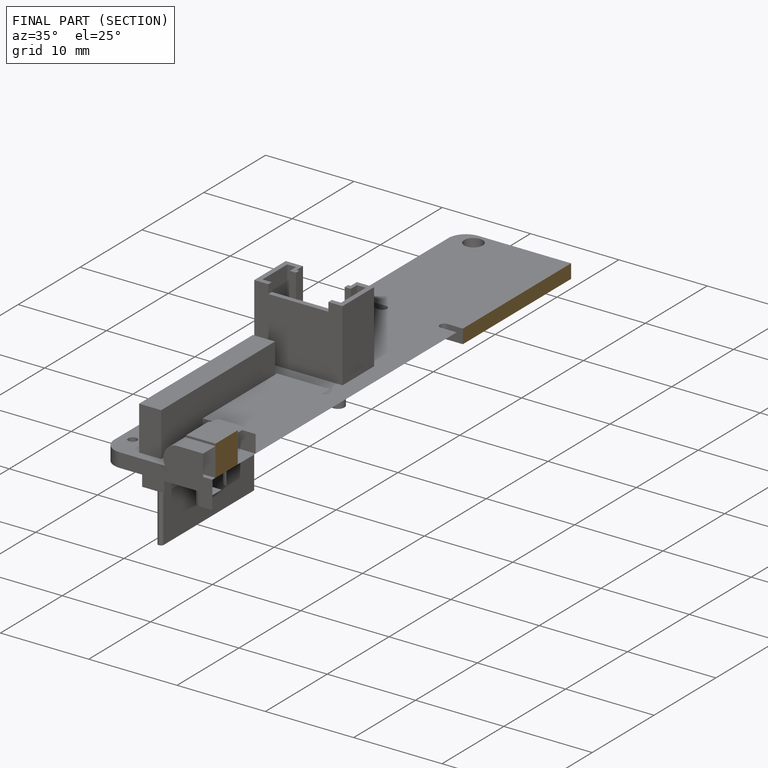
[diagram: finished part — half-section view (interior)]
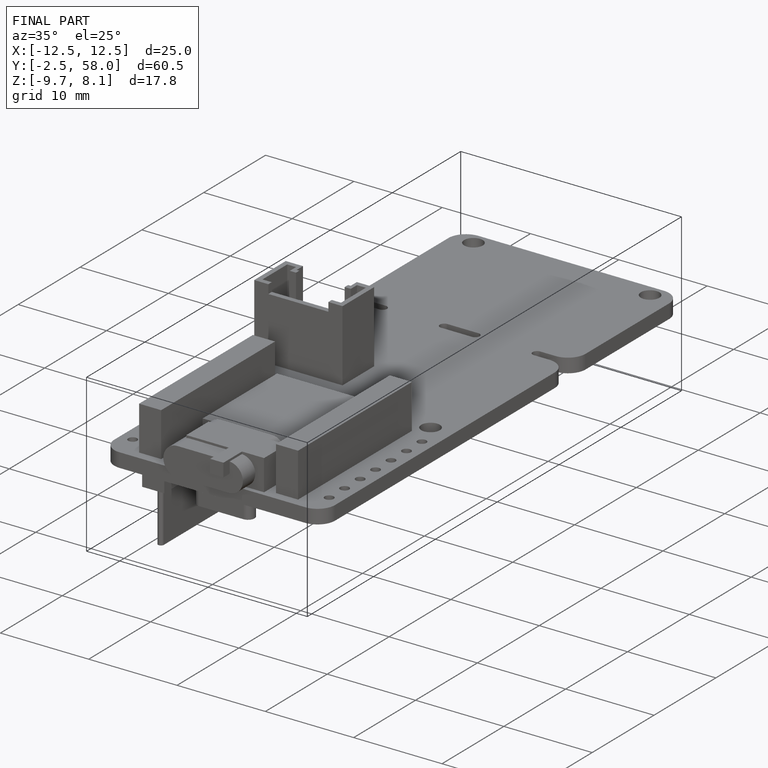
[diagram: finished part — iso view with bounding-box wireframe]
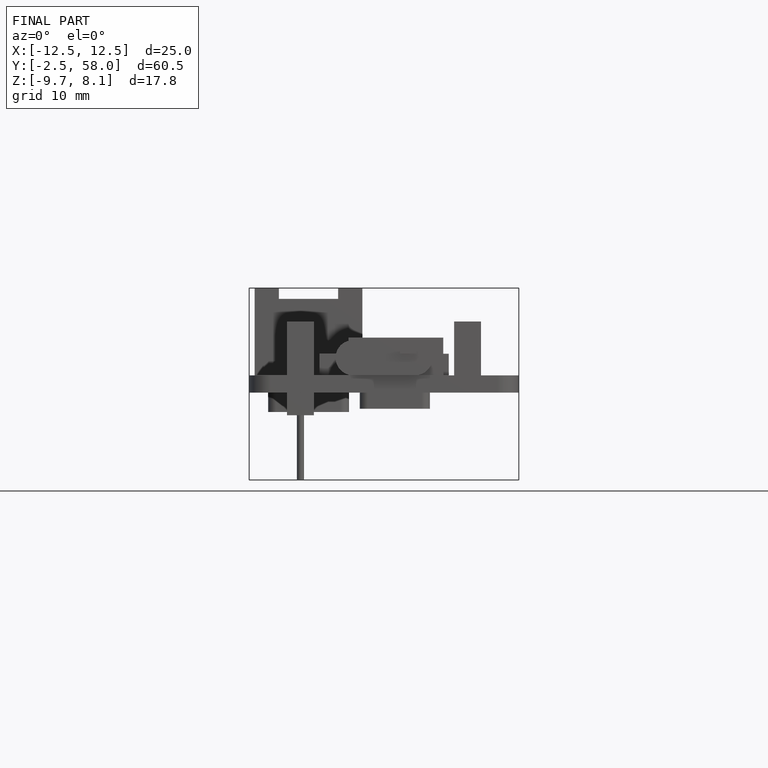
[diagram: finished part — front view with bounding-box wireframe]
